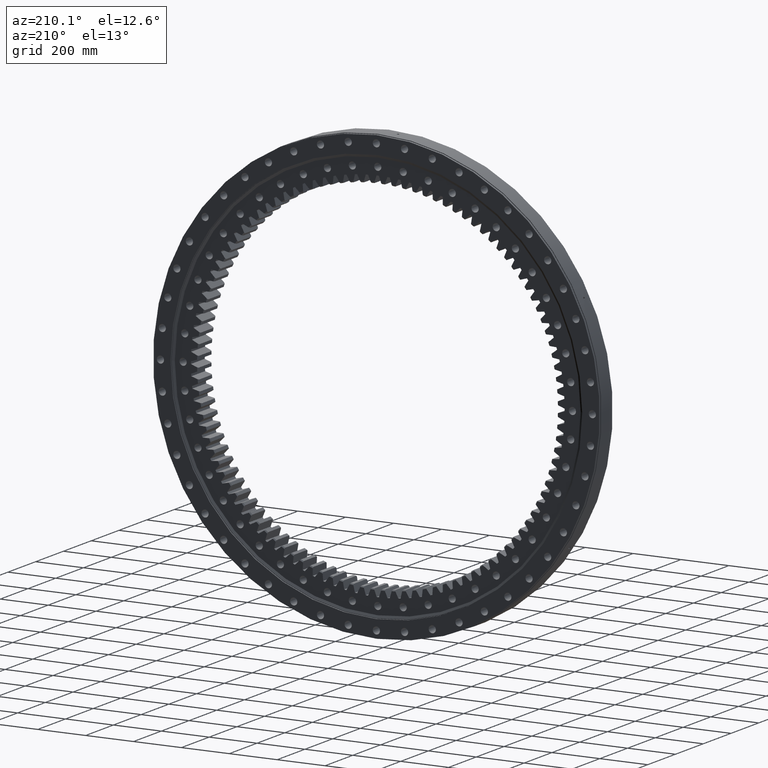
[diagram: clean part render]
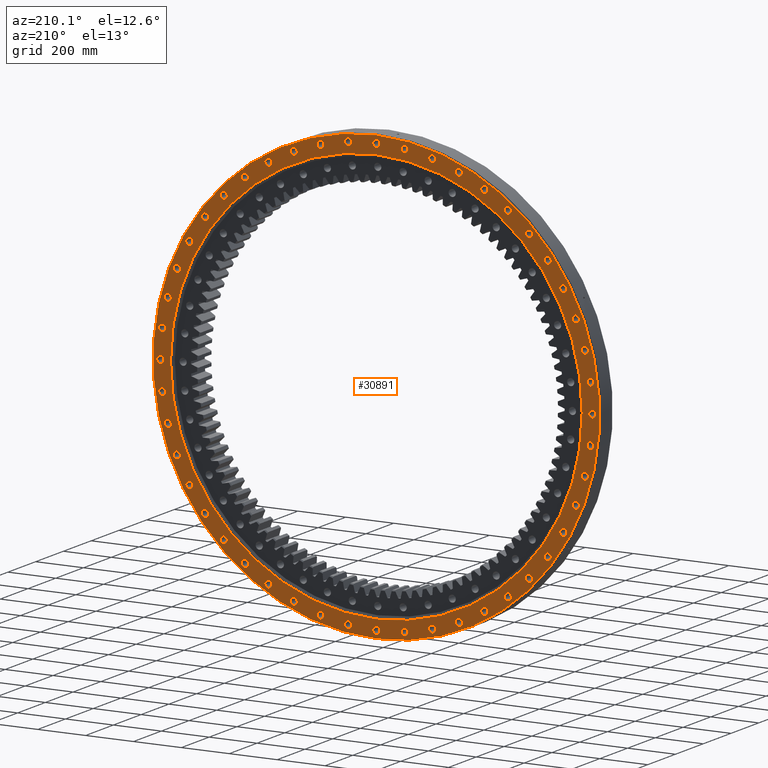
[diagram: same view with one face highlighted and labeled with its STEP entity id]
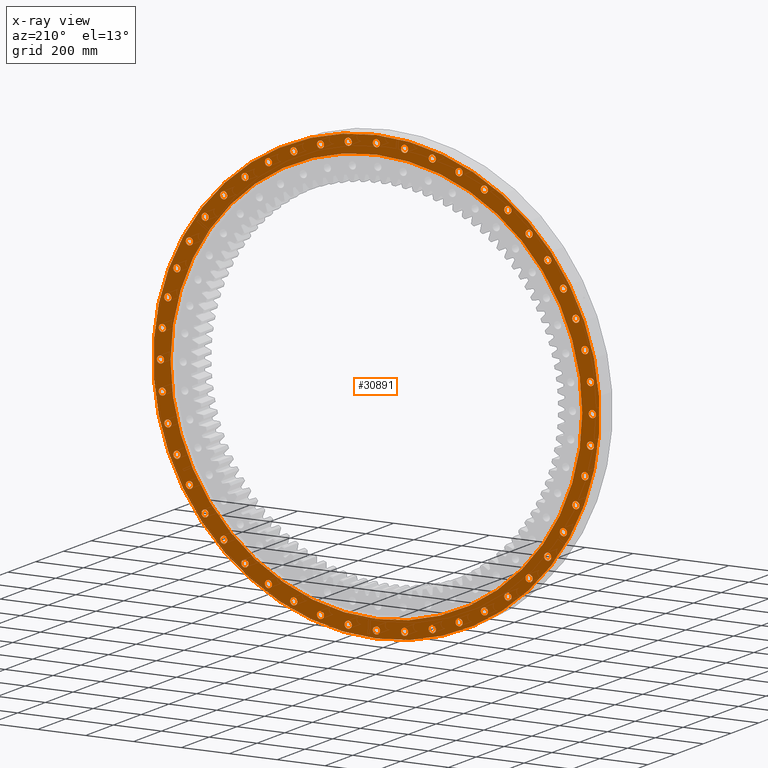
[diagram: x-ray of the same camera — body ghosted, the highlighted face saturated]
A machine part, auxiliary view. The second image highlights one B-rep face of the part: STEP entity #30891.
The next image is the same camera in x-ray: the body ghosted, the highlighted face saturated — about 0% of this face is hidden behind the body in this view.
In plain terms, the highlighted planar face has unit normal (0, -1, -0).
Its self-contained STEP definition (entity closure, byte-faithful):
#3 = CIRCLE ( 'NONE', #27538, 14.99999999999998000 ) ;
#63 = DIRECTION ( 'NONE',  ( 1.173697223544192200E-016, -1.000000000000000000, -3.494217355385783800E-017 ) ) ;
#72 = FACE_BOUND ( 'NONE', #2054, .T. ) ;
#81 = DIRECTION ( 'NONE',  ( 1.173697223544192200E-016, -1.000000000000000000, -3.494217355385783800E-017 ) ) ;
#86 = VERTEX_POINT ( 'NONE', #26274 ) ;
#94 = CARTESIAN_POINT ( 'NONE',  ( 6.801570962006775200E-012, 50.00000000000013500, -902.0000000000000000 ) ) ;
#101 = CIRCLE ( 'NONE', #29449, 15.00000000000004100 ) ;
#108 = AXIS2_PLACEMENT_3D ( 'NONE', #29993, #28462, #15073 ) ;
#120 = CIRCLE ( 'NONE', #23878, 14.99999999999998900 ) ;
#169 = AXIS2_PLACEMENT_3D ( 'NONE', #20836, #20941, #21055 ) ;
#172 = ORIENTED_EDGE ( 'NONE', *, *, #29916, .T. ) ;
#181 = AXIS2_PLACEMENT_3D ( 'NONE', #17140, #2171, #19634 ) ;
#229 = DIRECTION ( 'NONE',  ( 0.5000000000000017800, 0.0000000000000000000, 0.8660254037844376000 ) ) ;
#243 = EDGE_LOOP ( 'NONE', ( #14337, #7888 ) ) ;
#252 = ORIENTED_EDGE ( 'NONE', *, *, #29567, .T. ) ;
#289 = EDGE_CURVE ( 'NONE', #6987, #1306, #21951, .T. ) ;
#373 = CARTESIAN_POINT ( 'NONE',  ( 345.1804559933179900, 50.00000000000017100, -818.3393383251777800 ) ) ;
#406 = DIRECTION ( 'NONE',  ( 0.7933533402912311700, 0.0000000000000000000, -0.6087614290087257600 ) ) ;
#422 = VERTEX_POINT ( 'NONE', #20165 ) ;
#447 = CIRCLE ( 'NONE', #16486, 14.99999999999996300 ) ;
#513 = EDGE_LOOP ( 'NONE', ( #172, #29386 ) ) ;
#521 = AXIS2_PLACEMENT_3D ( 'NONE', #3007, #10561, #21076 ) ;
#542 = EDGE_LOOP ( 'NONE', ( #16275, #10232 ) ) ;
#561 = EDGE_LOOP ( 'NONE', ( #25089, #31886 ) ) ;
#563 = AXIS2_PLACEMENT_3D ( 'NONE', #7395, #27239, #7280 ) ;
#568 = CARTESIAN_POINT ( 'NONE',  ( 117.7346253824738100, 50.00000000000007800, 879.2832649591786100 ) ) ;
#600 = ORIENTED_EDGE ( 'NONE', *, *, #831, .T. ) ;
#602 = VERTEX_POINT ( 'NONE', #9933 ) ;
#659 = CARTESIAN_POINT ( 'NONE',  ( -345.1804559933117400, 50.00000000000002800, 833.3393383251803900 ) ) ;
#661 = VERTEX_POINT ( 'NONE', #4127 ) ;
#668 = AXIS2_PLACEMENT_3D ( 'NONE', #19312, #21830, #6883 ) ;
#711 = DIRECTION ( 'NONE',  ( -0.7933533402912410500, 0.0000000000000000000, -0.6087614290087130000 ) ) ;
#736 = VERTEX_POINT ( 'NONE', #4018 ) ;
#743 = VERTEX_POINT ( 'NONE', #6397 ) ;
#794 = DIRECTION ( 'NONE',  ( 0.8660254037844359300, 0.0000000000000000000, -0.5000000000000045500 ) ) ;
#814 = ORIENTED_EDGE ( 'NONE', *, *, #18631, .T. ) ;
#831 = EDGE_CURVE ( 'NONE', #21759, #1508, #20322, .T. ) ;
#849 = FACE_BOUND ( 'NONE', #20441, .T. ) ;
#882 = EDGE_CURVE ( 'NONE', #24099, #29479, #24227, .T. ) ;
#920 = CIRCLE ( 'NONE', #1044, 15.00000000000004800 ) ;
#978 = EDGE_CURVE ( 'NONE', #1429, #23157, #14441, .T. ) ;
#1044 = AXIS2_PLACEMENT_3D ( 'NONE', #6960, #28805, #2208 ) ;
#1173 = CIRCLE ( 'NONE', #21578, 15.00000000000002800 ) ;
#1185 = EDGE_LOOP ( 'NONE', ( #25705, #8099 ) ) ;
#1209 = CARTESIAN_POINT ( 'NONE',  ( 451.0000000000067600, 50.00000000000018500, -781.1549142135597800 ) ) ;
#1251 = CARTESIAN_POINT ( 'NONE',  ( 6.804182962045533600E-012, 50.00000000000013500, -917.0000000000000000 ) ) ;
#1306 = VERTEX_POINT ( 'NONE', #7693 ) ;
#1429 = VERTEX_POINT ( 'NONE', #31940 ) ;
#1448 = CARTESIAN_POINT ( 'NONE',  ( 6.807685266781192500E-012, 50.00000000000013500, -887.0000000000000000 ) ) ;
#1508 = VERTEX_POINT ( 'NONE', #24439 ) ;
#1568 = AXIS2_PLACEMENT_3D ( 'NONE', #26696, #26627, #27031 ) ;
#1611 = CARTESIAN_POINT ( 'NONE',  ( 715.6047129426872300, 50.00000000000016300, 564.1028089658749400 ) ) ;
#1635 = FACE_BOUND ( 'NONE', #30404, .T. ) ;
#1647 = CIRCLE ( 'NONE', #24895, 14.99999999999996400 ) ;
#1728 = AXIS2_PLACEMENT_3D ( 'NONE', #10919, #20835, #5889 ) ;
#1733 = EDGE_LOOP ( 'NONE', ( #27040, #15904 ) ) ;
#1815 = EDGE_CURVE ( 'NONE', #11318, #10896, #21083, .T. ) ;
#1867 = DIRECTION ( 'NONE',  ( 0.6087614290087212100, 0.0000000000000000000, 0.7933533402912347200 ) ) ;
#1886 = ORIENTED_EDGE ( 'NONE', *, *, #2342, .T. ) ;
#1913 = CIRCLE ( 'NONE', #7288, 15.00000000000004800 ) ;
#1927 = CARTESIAN_POINT ( 'NONE',  ( 345.1804559932997400, 50.00000000000011400, 818.3393383251856200 ) ) ;
#1934 = DIRECTION ( 'NONE',  ( 1.173697223544192200E-016, -1.000000000000000000, -3.494217355385783800E-017 ) ) ;
#1947 = CARTESIAN_POINT ( 'NONE',  ( 549.1028089658566400, 50.00000000000013500, 715.6047129427013300 ) ) ;
#1963 = CIRCLE ( 'NONE', #20094, 15.00000000000005500 ) ;
#2032 = DIRECTION ( 'NONE',  ( -0.9659258262890652000, 0.0000000000000000000, 0.2588190451025322300 ) ) ;
#2042 = EDGE_CURVE ( 'NONE', #10896, #11318, #23805, .T. ) ;
#2046 = AXIS2_PLACEMENT_3D ( 'NONE', #5449, #5587, #5654 ) ;
#2051 = CARTESIAN_POINT ( 'NONE',  ( 233.4547786824808200, 50.00000000000015600, -886.2650953127376900 ) ) ;
#2054 = EDGE_LOOP ( 'NONE', ( #26213, #814 ) ) ;
#2088 = DIRECTION ( 'NONE',  ( 1.173697223544192200E-016, -1.000000000000000000, -3.494217355385783800E-017 ) ) ;
#2150 = EDGE_CURVE ( 'NONE', #5870, #21855, #19910, .T. ) ;
#2171 = DIRECTION ( 'NONE',  ( 1.173697223544192200E-016, -1.000000000000000000, -3.494217355385783800E-017 ) ) ;
#2205 = DIRECTION ( 'NONE',  ( 0.7933533402912375000, 0.0000000000000000000, 0.6087614290087175500 ) ) ;
#2208 = DIRECTION ( 'NONE',  ( 0.1305261922200517400, 0.0000000000000000000, 0.9914448613738103800 ) ) ;
#2222 = CARTESIAN_POINT ( 'NONE',  ( 781.1549142135683000, 50.00000000000020600, -435.9999999999923800 ) ) ;
#2223 = CARTESIAN_POINT ( 'NONE',  ( -5.868486117720972100E-015, 50.00000000000009900, 1.155123329265233200E-015 ) ) ;
#2226 = AXIS2_PLACEMENT_3D ( 'NONE', #1209, #22328, #23984 ) ;
#2280 = CARTESIAN_POINT ( 'NONE',  ( 715.6047129426872300, 50.00000000000016300, 549.1028089658749400 ) ) ;
#2318 = DIRECTION ( 'NONE',  ( 1.173697223544192200E-016, -1.000000000000000000, -3.494217355385783800E-017 ) ) ;
#2342 = EDGE_CURVE ( 'NONE', #4179, #736, #8580, .T. ) ;
#2401 = FACE_BOUND ( 'NONE', #30347, .T. ) ;
#2490 = VERTEX_POINT ( 'NONE', #25889 ) ;
#2750 = EDGE_CURVE ( 'NONE', #25613, #28932, #19879, .T. ) ;
#2751 = CIRCLE ( 'NONE', #181, 15.00000000000004400 ) ;
#2819 = DIRECTION ( 'NONE',  ( 1.173697223544192200E-016, -1.000000000000000000, -3.494217355385783800E-017 ) ) ;
#2850 = DIRECTION ( 'NONE',  ( 1.173697223544192200E-016, -1.000000000000000000, -3.494217355385783800E-017 ) ) ;
#2857 = CARTESIAN_POINT ( 'NONE',  ( 637.8103166302719300, 50.00000000000019900, -637.8103166302598800 ) ) ;
#2868 = CARTESIAN_POINT ( 'NONE',  ( -894.2832649591773600, 49.99999999999998600, 102.7346253824835600 ) ) ;
#2896 = DIRECTION ( 'NONE',  ( 0.7071067811865438000, 0.0000000000000000000, -0.7071067811865512400 ) ) ;
#2897 = CIRCLE ( 'NONE', #27378, 14.99999999999996800 ) ;
#2984 = CIRCLE ( 'NONE', #2226, 15.00000000000003000 ) ;
#2986 = EDGE_LOOP ( 'NONE', ( #9182, #12463 ) ) ;
#2995 = EDGE_CURVE ( 'NONE', #10478, #25177, #14388, .T. ) ;
#3007 = CARTESIAN_POINT ( 'NONE',  ( -637.8103166302621500, 50.00000000000004300, -637.8103166302696500 ) ) ;
#3033 = CIRCLE ( 'NONE', #3389, 932.5000000000001100 ) ;
#3059 = CARTESIAN_POINT ( 'NONE',  ( -345.1804559933054300, 50.00000000000008500, -833.3393383251828900 ) ) ;
#3078 = AXIS2_PLACEMENT_3D ( 'NONE', #24471, #9526, #26991 ) ;
#3125 = VERTEX_POINT ( 'NONE', #8338 ) ;
#3169 = FACE_BOUND ( 'NONE', #542, .T. ) ;
#3178 = DIRECTION ( 'NONE',  ( 1.173697223544192200E-016, -1.000000000000000000, -3.494217355385783800E-017 ) ) ;
#3277 = ORIENTED_EDGE ( 'NONE', *, *, #4841, .T. ) ;
#3345 = CARTESIAN_POINT ( 'NONE',  ( -637.8103166302621500, 50.00000000000004300, -637.8103166302696500 ) ) ;
#3351 = ORIENTED_EDGE ( 'NONE', *, *, #10917, .T. ) ;
#3356 = AXIS2_PLACEMENT_3D ( 'NONE', #3648, #28362, #22997 ) ;
#3376 = CIRCLE ( 'NONE', #31932, 15.00000000000000500 ) ;
#3389 = AXIS2_PLACEMENT_3D ( 'NONE', #2223, #19692, #4727 ) ;
#3421 = AXIS2_PLACEMENT_3D ( 'NONE', #28040, #14301, #229 ) ;
#3530 = CARTESIAN_POINT ( 'NONE',  ( 450.9999999999896000, 50.00000000000012800, 781.1549142135696700 ) ) ;
#3555 = DIRECTION ( 'NONE',  ( 0.5000000000000017800, 0.0000000000000000000, 0.8660254037844376000 ) ) ;
#3596 = DIRECTION ( 'NONE',  ( 1.173697223544192200E-016, -1.000000000000000000, -3.494217355385783800E-017 ) ) ;
#3628 = CARTESIAN_POINT ( 'NONE',  ( 549.1028089658566400, 50.00000000000013500, 715.6047129427013300 ) ) ;
#3639 = DIRECTION ( 'NONE',  ( 1.173697223544192200E-016, -1.000000000000000000, -3.494217355385783800E-017 ) ) ;
#3642 = ORIENTED_EDGE ( 'NONE', *, *, #4660, .T. ) ;
#3648 = CARTESIAN_POINT ( 'NONE',  ( 637.8103166302719300, 50.00000000000019900, -637.8103166302598800 ) ) ;
#3696 = DIRECTION ( 'NONE',  ( 1.173697223544192200E-016, -1.000000000000000000, -3.494217355385783800E-017 ) ) ;
#3708 = EDGE_CURVE ( 'NONE', #8336, #7880, #15520, .T. ) ;
#3802 = VERTEX_POINT ( 'NONE', #27596 ) ;
#3884 = AXIS2_PLACEMENT_3D ( 'NONE', #29629, #14668, #32161 ) ;
#3948 = FACE_BOUND ( 'NONE', #11514, .T. ) ;
#3991 = EDGE_CURVE ( 'NONE', #23522, #7180, #3376, .T. ) ;
#3995 = ORIENTED_EDGE ( 'NONE', *, *, #9435, .T. ) ;
#4018 = CARTESIAN_POINT ( 'NONE',  ( -117.7346253824876900, 50.00000000000005000, 879.2832649591769000 ) ) ;
#4049 = ORIENTED_EDGE ( 'NONE', *, *, #11099, .T. ) ;
#4086 = VERTEX_POINT ( 'NONE', #5808 ) ;
#4127 = CARTESIAN_POINT ( 'NONE',  ( 871.2650953127368900, 50.00000000000019900, 218.4547786824838600 ) ) ;
#4147 = CARTESIAN_POINT ( 'NONE',  ( 451.0000000000067600, 50.00000000000018500, -796.1549142135597800 ) ) ;
#4171 = DIRECTION ( 'NONE',  ( 1.173697223544192200E-016, -1.000000000000000000, -3.494217355385783800E-017 ) ) ;
#4179 = VERTEX_POINT ( 'NONE', #11150 ) ;
#4192 = EDGE_LOOP ( 'NONE', ( #26758, #13366 ) ) ;
#4264 = VERTEX_POINT ( 'NONE', #8908 ) ;
#4267 = EDGE_CURVE ( 'NONE', #30924, #4722, #2984, .T. ) ;
#4269 = EDGE_CURVE ( 'NONE', #15565, #6810, #22147, .T. ) ;
#4273 = AXIS2_PLACEMENT_3D ( 'NONE', #18497, #18462, #18402 ) ;
#4320 = CARTESIAN_POINT ( 'NONE',  ( -233.4547786824676600, 50.00000000000009900, -856.2650953127413200 ) ) ;
#4355 = DIRECTION ( 'NONE',  ( 1.173697223544192200E-016, -1.000000000000000000, -3.494217355385783800E-017 ) ) ;
#4469 = CARTESIAN_POINT ( 'NONE',  ( -871.2650953127385900, 50.00000000000000000, -233.4547786824777800 ) ) ;
#4517 = CARTESIAN_POINT ( 'NONE',  ( -871.2650953127404100, 49.99999999999998600, 233.4547786824707300 ) ) ;
#4518 = AXIS2_PLACEMENT_3D ( 'NONE', #23077, #8144, #25592 ) ;
#4535 = DIRECTION ( 'NONE',  ( -0.9659258262890708700, 0.0000000000000000000, -0.2588190451025113600 ) ) ;
#4543 = DIRECTION ( 'NONE',  ( 1.173697223544192200E-016, -1.000000000000000000, -3.494217355385783800E-017 ) ) ;
#4564 = AXIS2_PLACEMENT_3D ( 'NONE', #27702, #17250, #11973 ) ;
#4586 = VERTEX_POINT ( 'NONE', #25896 ) ;
#4660 = EDGE_CURVE ( 'NONE', #8853, #27270, #7691, .T. ) ;
#4722 = VERTEX_POINT ( 'NONE', #19667 ) ;
#4727 = DIRECTION ( 'NONE',  ( 5.551115123125782700E-017, -3.720586543649987800E-017, 1.000000000000000000 ) ) ;
#4729 = CARTESIAN_POINT ( 'NONE',  ( -833.3393383251818700, 49.99999999999998600, 345.1804559933079300 ) ) ;
#4749 = FACE_BOUND ( 'NONE', #2986, .T. ) ;
#4809 = AXIS2_PLACEMENT_3D ( 'NONE', #12457, #2850, #12772 ) ;
#4837 = AXIS2_PLACEMENT_3D ( 'NONE', #3059, #20513, #5568 ) ;
#4841 = EDGE_CURVE ( 'NONE', #661, #23095, #22881, .T. ) ;
#4857 = EDGE_LOOP ( 'NONE', ( #16171, #31882 ) ) ;
#4885 = AXIS2_PLACEMENT_3D ( 'NONE', #26130, #11168, #28628 ) ;
#4962 = ORIENTED_EDGE ( 'NONE', *, *, #3991, .T. ) ;
#5004 = ORIENTED_EDGE ( 'NONE', *, *, #28005, .T. ) ;
#5017 = EDGE_CURVE ( 'NONE', #26317, #31073, #25605, .T. ) ;
#5041 = EDGE_CURVE ( 'NONE', #7768, #11282, #13090, .T. ) ;
#5049 = DIRECTION ( 'NONE',  ( 1.173697223544192200E-016, -1.000000000000000000, -3.494217355385783800E-017 ) ) ;
#5052 = DIRECTION ( 'NONE',  ( 1.173697223544192200E-016, -1.000000000000000000, -3.494217355385783800E-017 ) ) ;
#5060 = VERTEX_POINT ( 'NONE', #14300 ) ;
#5074 = CARTESIAN_POINT ( 'NONE',  ( -781.1549142135613700, 50.00000000000002100, -436.0000000000040400 ) ) ;
#5111 = EDGE_CURVE ( 'NONE', #602, #7812, #29122, .T. ) ;
#5125 = CIRCLE ( 'NONE', #20167, 15.00000000000001400 ) ;
#5134 = FACE_BOUND ( 'NONE', #9585, .T. ) ;
#5172 = CIRCLE ( 'NONE', #10446, 15.00000000000004800 ) ;
#5189 = DIRECTION ( 'NONE',  ( 1.173697223544192200E-016, -1.000000000000000000, -3.494217355385783800E-017 ) ) ;
#5257 = CARTESIAN_POINT ( 'NONE',  ( 715.6047129426872300, 50.00000000000016300, 549.1028089658749400 ) ) ;
#5291 = EDGE_LOOP ( 'NONE', ( #14452, #25015 ) ) ;
#5326 = AXIS2_PLACEMENT_3D ( 'NONE', #12683, #12185, #12145 ) ;
#5333 = ORIENTED_EDGE ( 'NONE', *, *, #2995, .T. ) ;
#5371 = DIRECTION ( 'NONE',  ( -0.5000000000000073300, 0.0000000000000000000, -0.8660254037844343800 ) ) ;
#5388 = AXIS2_PLACEMENT_3D ( 'NONE', #11753, #29246, #14264 ) ;
#5449 = CARTESIAN_POINT ( 'NONE',  ( -894.2832649591773600, 49.99999999999998600, 117.7346253824835700 ) ) ;
#5477 = DIRECTION ( 'NONE',  ( 1.173697223544192200E-016, -1.000000000000000000, -3.494217355385783800E-017 ) ) ;
#5483 = CIRCLE ( 'NONE', #10529, 14.99999999999996400 ) ;
#5568 = DIRECTION ( 'NONE',  ( -0.3826834323650986100, 0.0000000000000000000, -0.9238795325112830700 ) ) ;
#5579 = CARTESIAN_POINT ( 'NONE',  ( -450.9999999999950500, 50.00000000000007100, -781.1549142135664900 ) ) ;
#5580 = CARTESIAN_POINT ( 'NONE',  ( 345.1804559932997400, 50.00000000000011400, 833.3393383251856200 ) ) ;
#5587 = DIRECTION ( 'NONE',  ( 1.173697223544192200E-016, -1.000000000000000000, -3.494217355385783800E-017 ) ) ;
#5601 = VERTEX_POINT ( 'NONE', #32294 ) ;
#5613 = EDGE_LOOP ( 'NONE', ( #22590, #8625 ) ) ;
#5654 = DIRECTION ( 'NONE',  ( -0.9914448613738088300, 0.0000000000000000000, 0.1305261922200636200 ) ) ;
#5677 = ORIENTED_EDGE ( 'NONE', *, *, #11122, .T. ) ;
#5699 = EDGE_LOOP ( 'NONE', ( #252, #18092 ) ) ;
#5733 = ORIENTED_EDGE ( 'NONE', *, *, #882, .T. ) ;
#5773 = ORIENTED_EDGE ( 'NONE', *, *, #32227, .T. ) ;
#5808 = CARTESIAN_POINT ( 'NONE',  ( -345.1804559933054300, 50.00000000000008500, -818.3393383251828900 ) ) ;
#5846 = ORIENTED_EDGE ( 'NONE', *, *, #24245, .T. ) ;
#5870 = VERTEX_POINT ( 'NONE', #30946 ) ;
#5889 = DIRECTION ( 'NONE',  ( -0.2588190451025079200, 0.0000000000000000000, 0.9659258262890717500 ) ) ;
#5904 = FACE_BOUND ( 'NONE', #18943, .T. ) ;
#6104 = CARTESIAN_POINT ( 'NONE',  ( -549.1028089658677800, 50.00000000000000700, 730.6047129426928000 ) ) ;
#6184 = ORIENTED_EDGE ( 'NONE', *, *, #23850, .T. ) ;
#6216 = VERTEX_POINT ( 'NONE', #22247 ) ;
#6283 = AXIS2_PLACEMENT_3D ( 'NONE', #2857, #2819, #2896 ) ;
#6316 = FACE_BOUND ( 'NONE', #20021, .T. ) ;
#6319 = CARTESIAN_POINT ( 'NONE',  ( -549.1028089658677800, 50.00000000000000700, 715.6047129426928000 ) ) ;
#6396 = CIRCLE ( 'NONE', #25707, 15.00000000000001600 ) ;
#6397 = CARTESIAN_POINT ( 'NONE',  ( 233.4547786824808200, 50.00000000000015600, -856.2650953127376900 ) ) ;
#6474 = AXIS2_PLACEMENT_3D ( 'NONE', #29522, #29483, #29448 ) ;
#6566 = CARTESIAN_POINT ( 'NONE',  ( 4.185569959669408200E-014, 50.00000000000007800, 859.7224999999999700 ) ) ;
#6612 = CARTESIAN_POINT ( 'NONE',  ( -833.3393383251791400, 50.00000000000001400, -360.1804559933146900 ) ) ;
#6637 = CARTESIAN_POINT ( 'NONE',  ( -345.1804559933117400, 50.00000000000002800, 818.3393383251803900 ) ) ;
#6641 = ORIENTED_EDGE ( 'NONE', *, *, #18972, .T. ) ;
#6648 = AXIS2_PLACEMENT_3D ( 'NONE', #18604, #3639, #21118 ) ;
#6715 = FACE_BOUND ( 'NONE', #12240, .T. ) ;
#6750 = CIRCLE ( 'NONE', #21057, 15.00000000000002700 ) ;
#6778 = DIRECTION ( 'NONE',  ( 0.8660254037844410400, 0.0000000000000000000, 0.4999999999999957300 ) ) ;
#6799 = CIRCLE ( 'NONE', #3884, 15.00000000000004800 ) ;
#6810 = VERTEX_POINT ( 'NONE', #31322 ) ;
#6883 = DIRECTION ( 'NONE',  ( 5.551115123125782700E-017, -3.228434246588744100E-017, 1.000000000000000000 ) ) ;
#6917 = ORIENTED_EDGE ( 'NONE', *, *, #1815, .T. ) ;
#6918 = AXIS2_PLACEMENT_3D ( 'NONE', #13911, #13882, #13947 ) ;
#6935 = DIRECTION ( 'NONE',  ( -0.9238795325112817400, 0.0000000000000000000, 0.3826834323651017200 ) ) ;
#6939 = EDGE_CURVE ( 'NONE', #19975, #3802, #28600, .T. ) ;
#6959 = VERTEX_POINT ( 'NONE', #6986 ) ;
#6960 = CARTESIAN_POINT ( 'NONE',  ( 117.7346253824738100, 50.00000000000007800, 894.2832649591786100 ) ) ;
#6971 = CIRCLE ( 'NONE', #21906, 15.00000000000004800 ) ;
#6973 = EDGE_LOOP ( 'NONE', ( #17966, #27580 ) ) ;
#6986 = CARTESIAN_POINT ( 'NONE',  ( 345.1804559932997400, 50.00000000000011400, 848.3393383251856200 ) ) ;
#6987 = VERTEX_POINT ( 'NONE', #11539 ) ;
#7010 = ORIENTED_EDGE ( 'NONE', *, *, #17253, .T. ) ;
#7015 = EDGE_CURVE ( 'NONE', #18455, #32383, #7153, .T. ) ;
#7018 = CIRCLE ( 'NONE', #20210, 15.00000000000000500 ) ;
#7065 = DIRECTION ( 'NONE',  ( 1.173697223544192200E-016, -1.000000000000000000, -3.494217355385783800E-017 ) ) ;
#7135 = CIRCLE ( 'NONE', #6474, 15.00000000000003600 ) ;
#7153 = CIRCLE ( 'NONE', #12647, 14.99999999999998000 ) ;
#7180 = VERTEX_POINT ( 'NONE', #15303 ) ;
#7210 = CARTESIAN_POINT ( 'NONE',  ( 781.1549142135581900, 50.00000000000017800, 451.0000000000095500 ) ) ;
#7231 = VERTEX_POINT ( 'NONE', #16480 ) ;
#7251 = VERTEX_POINT ( 'NONE', #17072 ) ;
#7280 = DIRECTION ( 'NONE',  ( -0.9659258262890652000, 0.0000000000000000000, 0.2588190451025322300 ) ) ;
#7288 = AXIS2_PLACEMENT_3D ( 'NONE', #15275, #30234, #12738 ) ;
#7351 = CARTESIAN_POINT ( 'NONE',  ( -1.311194026951523000E-011, 50.00000000000006400, 902.0000000000000000 ) ) ;
#7395 = CARTESIAN_POINT ( 'NONE',  ( -871.2650953127404100, 49.99999999999998600, 233.4547786824707300 ) ) ;
#7437 = CARTESIAN_POINT ( 'NONE',  ( 871.2650953127423500, 50.00000000000021300, -233.4547786824646800 ) ) ;
#7513 = FACE_BOUND ( 'NONE', #13023, .T. ) ;
#7640 = AXIS2_PLACEMENT_3D ( 'NONE', #10758, #10724, #10685 ) ;
#7691 = CIRCLE ( 'NONE', #18321, 14.99999999999997500 ) ;
#7693 = CARTESIAN_POINT ( 'NONE',  ( -233.4547786824747400, 50.00000000000004300, 856.2650953127392800 ) ) ;
#7712 = DIRECTION ( 'NONE',  ( 1.173697223544192200E-016, -1.000000000000000000, -3.494217355385783800E-017 ) ) ;
#7728 = DIRECTION ( 'NONE',  ( -0.4999999999999901700, 0.0000000000000000000, 0.8660254037844442600 ) ) ;
#7757 = EDGE_CURVE ( 'NONE', #422, #5060, #30426, .T. ) ;
#7768 = VERTEX_POINT ( 'NONE', #28690 ) ;
#7812 = VERTEX_POINT ( 'NONE', #30935 ) ;
#7843 = VERTEX_POINT ( 'NONE', #31793 ) ;
#7880 = VERTEX_POINT ( 'NONE', #1251 ) ;
#7888 = ORIENTED_EDGE ( 'NONE', *, *, #11612, .T. ) ;
#7894 = CARTESIAN_POINT ( 'NONE',  ( 549.1028089658724400, 50.00000000000019200, -715.6047129426891600 ) ) ;
#7978 = AXIS2_PLACEMENT_3D ( 'NONE', #3530, #3596, #3555 ) ;
#7980 = EDGE_CURVE ( 'NONE', #32383, #18455, #31573, .T. ) ;
#7991 = DIRECTION ( 'NONE',  ( 1.173697223544192200E-016, -1.000000000000000000, -3.494217355385783800E-017 ) ) ;
#7999 = CARTESIAN_POINT ( 'NONE',  ( -117.7346253824800300, 50.00000000000012100, -879.2832649591778100 ) ) ;
#8028 = DIRECTION ( 'NONE',  ( 0.6087614290087175500, 0.0000000000000000000, -0.7933533402912375000 ) ) ;
#8049 = EDGE_CURVE ( 'NONE', #18456, #15299, #10108, .T. ) ;
#8092 = AXIS2_PLACEMENT_3D ( 'NONE', #29951, #27446, #9994 ) ;
#8099 = ORIENTED_EDGE ( 'NONE', *, *, #24608, .T. ) ;
#8119 = DIRECTION ( 'NONE',  ( 0.3826834323650896700, 0.0000000000000000000, 0.9238795325112868500 ) ) ;
#8135 = EDGE_LOOP ( 'NONE', ( #20399, #8207 ) ) ;
#8144 = DIRECTION ( 'NONE',  ( 1.173697223544192200E-016, -1.000000000000000000, -3.494217355385783800E-017 ) ) ;
#8206 = DIRECTION ( 'NONE',  ( 1.173697223544192200E-016, -1.000000000000000000, -3.494217355385783800E-017 ) ) ;
#8207 = ORIENTED_EDGE ( 'NONE', *, *, #13068, .T. ) ;
#8232 = CARTESIAN_POINT ( 'NONE',  ( 894.2832649591757700, 50.00000000000019900, 117.7346253824966700 ) ) ;
#8237 = EDGE_CURVE ( 'NONE', #21405, #22146, #6971, .T. ) ;
#8249 = CARTESIAN_POINT ( 'NONE',  ( -715.6047129426908700, 50.00000000000003600, -549.1028089658703900 ) ) ;
#8251 = ORIENTED_EDGE ( 'NONE', *, *, #22492, .T. ) ;
#8277 = FACE_BOUND ( 'NONE', #21787, .T. ) ;
#8336 = VERTEX_POINT ( 'NONE', #1448 ) ;
#8338 = CARTESIAN_POINT ( 'NONE',  ( 715.6047129426995100, 50.00000000000020600, -534.1028089658591400 ) ) ;
#8353 = AXIS2_PLACEMENT_3D ( 'NONE', #3628, #21103, #13559 ) ;
#8362 = CARTESIAN_POINT ( 'NONE',  ( -345.1804559933054300, 50.00000000000008500, -848.3393383251828900 ) ) ;
#8408 = EDGE_LOOP ( 'NONE', ( #25275, #3642 ) ) ;
#8435 = ORIENTED_EDGE ( 'NONE', *, *, #19935, .T. ) ;
#8580 = CIRCLE ( 'NONE', #1568, 15.00000000000002100 ) ;
#8625 = ORIENTED_EDGE ( 'NONE', *, *, #4267, .T. ) ;
#8651 = AXIS2_PLACEMENT_3D ( 'NONE', #29411, #31003, #794 ) ;
#8683 = CARTESIAN_POINT ( 'NONE',  ( -833.3393383251791400, 50.00000000000001400, -330.1804559933146900 ) ) ;
#8853 = VERTEX_POINT ( 'NONE', #29032 ) ;
#8908 = CARTESIAN_POINT ( 'NONE',  ( -1.311110760224676300E-011, 50.00000000000006400, 917.0000000000000000 ) ) ;
#8965 = ORIENTED_EDGE ( 'NONE', *, *, #13414, .T. ) ;
#9052 = EDGE_CURVE ( 'NONE', #1508, #21759, #11569, .T. ) ;
#9056 = FACE_BOUND ( 'NONE', #5699, .T. ) ;
#9126 = DIRECTION ( 'NONE',  ( 1.173697223544192200E-016, -1.000000000000000000, -3.494217355385783800E-017 ) ) ;
#9182 = ORIENTED_EDGE ( 'NONE', *, *, #6939, .T. ) ;
#9202 = VERTEX_POINT ( 'NONE', #2051 ) ;
#9354 = ORIENTED_EDGE ( 'NONE', *, *, #14016, .T. ) ;
#9431 = VERTEX_POINT ( 'NONE', #17850 ) ;
#9435 = EDGE_CURVE ( 'NONE', #15762, #10524, #21325, .T. ) ;
#9459 = EDGE_CURVE ( 'NONE', #29067, #23044, #20524, .T. ) ;
#9507 = CIRCLE ( 'NONE', #6648, 15.00000000000002700 ) ;
#9526 = DIRECTION ( 'NONE',  ( 1.173697223544192200E-016, -1.000000000000000000, -3.494217355385783800E-017 ) ) ;
#9544 = EDGE_CURVE ( 'NONE', #13448, #13204, #31481, .T. ) ;
#9548 = DIRECTION ( 'NONE',  ( 1.173697223544192200E-016, -1.000000000000000000, -3.494217355385783800E-017 ) ) ;
#9567 = EDGE_LOOP ( 'NONE', ( #6184, #9354 ) ) ;
#9585 = EDGE_LOOP ( 'NONE', ( #1886, #5004 ) ) ;
#9618 = EDGE_LOOP ( 'NONE', ( #18955, #4962 ) ) ;
#9655 = EDGE_CURVE ( 'NONE', #4586, #10680, #15847, .T. ) ;
#9700 = CARTESIAN_POINT ( 'NONE',  ( -345.1804559933117400, 50.00000000000002800, 848.3393383251803900 ) ) ;
#9851 = CARTESIAN_POINT ( 'NONE',  ( -833.3393383251791400, 50.00000000000001400, -345.1804559933146900 ) ) ;
#9853 = FACE_BOUND ( 'NONE', #513, .T. ) ;
#9890 = CIRCLE ( 'NONE', #21095, 15.00000000000004100 ) ;
#9914 = CARTESIAN_POINT ( 'NONE',  ( 6.801570962006775200E-012, 50.00000000000013500, -902.0000000000000000 ) ) ;
#9933 = CARTESIAN_POINT ( 'NONE',  ( 549.1028089658724400, 50.00000000000019200, -730.6047129426891600 ) ) ;
#9983 = EDGE_CURVE ( 'NONE', #25246, #28896, #14665, .T. ) ;
#9988 = CARTESIAN_POINT ( 'NONE',  ( 715.6047129426995100, 50.00000000000020600, -549.1028089658591400 ) ) ;
#9994 = DIRECTION ( 'NONE',  ( 1.000000000000000000, 0.0000000000000000000, -3.546992490074421600E-015 ) ) ;
#10100 = VERTEX_POINT ( 'NONE', #20213 ) ;
#10108 = CIRCLE ( 'NONE', #25857, 14.99999999999998400 ) ;
#10137 = CIRCLE ( 'NONE', #17212, 15.00000000000000200 ) ;
#10216 = CARTESIAN_POINT ( 'NONE',  ( -1.310932826947647200E-011, 50.00000000000006400, 887.0000000000000000 ) ) ;
#10223 = CARTESIAN_POINT ( 'NONE',  ( -451.0000000000013600, 50.00000000000001400, 781.1549142135628500 ) ) ;
#10232 = ORIENTED_EDGE ( 'NONE', *, *, #13370, .T. ) ;
#10322 = EDGE_LOOP ( 'NONE', ( #21047, #11412 ) ) ;
#10360 = EDGE_LOOP ( 'NONE', ( #19316, #13955 ) ) ;
#10405 = AXIS2_PLACEMENT_3D ( 'NONE', #7894, #7991, #8028 ) ;
#10445 = DIRECTION ( 'NONE',  ( 5.551115123120728400E-017, 0.0000000000000000000, 1.000000000000000000 ) ) ;
#10446 = AXIS2_PLACEMENT_3D ( 'NONE', #24011, #24054, #24081 ) ;
#10478 = VERTEX_POINT ( 'NONE', #6612 ) ;
#10524 = VERTEX_POINT ( 'NONE', #28202 ) ;
#10529 = AXIS2_PLACEMENT_3D ( 'NONE', #18077, #4355, #25619 ) ;
#10555 = AXIS2_PLACEMENT_3D ( 'NONE', #31557, #31522, #31515 ) ;
#10561 = DIRECTION ( 'NONE',  ( 1.173697223544192200E-016, -1.000000000000000000, -3.494217355385783800E-017 ) ) ;
#10611 = CARTESIAN_POINT ( 'NONE',  ( -902.0000000000000000, 49.99999999999999300, -3.656376171810296700E-012 ) ) ;
#10616 = FACE_BOUND ( 'NONE', #20887, .T. ) ;
#10650 = AXIS2_PLACEMENT_3D ( 'NONE', #29708, #22070, #29491 ) ;
#10680 = VERTEX_POINT ( 'NONE', #19149 ) ;
#10685 = DIRECTION ( 'NONE',  ( 5.551115123125782700E-017, -3.228434246588744100E-017, 1.000000000000000000 ) ) ;
#10716 = DIRECTION ( 'NONE',  ( 0.9914448613738108300, 0.0000000000000000000, 0.1305261922200481000 ) ) ;
#10724 = DIRECTION ( 'NONE',  ( 1.173697223544192200E-016, -1.000000000000000000, -3.494217355385783800E-017 ) ) ;
#10741 = DIRECTION ( 'NONE',  ( 1.173697223544192200E-016, -1.000000000000000000, -3.494217355385783800E-017 ) ) ;
#10758 = CARTESIAN_POINT ( 'NONE',  ( -5.868486117720972100E-015, 50.00000000000009900, 1.747108677692895600E-015 ) ) ;
#10773 = EDGE_LOOP ( 'NONE', ( #6641, #31018 ) ) ;
#10788 = AXIS2_PLACEMENT_3D ( 'NONE', #28124, #13173, #30656 ) ;
#10877 = EDGE_LOOP ( 'NONE', ( #17606, #7010 ) ) ;
#10896 = VERTEX_POINT ( 'NONE', #24573 ) ;
#10917 = EDGE_CURVE ( 'NONE', #31073, #26317, #19301, .T. ) ;
#10919 = CARTESIAN_POINT ( 'NONE',  ( -233.4547786824747400, 50.00000000000004300, 871.2650953127392800 ) ) ;
#10984 = FACE_BOUND ( 'NONE', #8135, .T. ) ;
#10990 = DIRECTION ( 'NONE',  ( 0.9238795325112880700, 0.0000000000000000000, 0.3826834323650865100 ) ) ;
#11099 = EDGE_CURVE ( 'NONE', #27190, #22835, #20434, .T. ) ;
#11122 = EDGE_CURVE ( 'NONE', #30263, #11791, #6396, .T. ) ;
#11129 = CIRCLE ( 'NONE', #4564, 15.00000000000006000 ) ;
#11137 = CARTESIAN_POINT ( 'NONE',  ( -637.8103166302621500, 50.00000000000004300, -622.8103166302696500 ) ) ;
#11150 = CARTESIAN_POINT ( 'NONE',  ( -117.7346253824876900, 50.00000000000005000, 909.2832649591769000 ) ) ;
#11168 = DIRECTION ( 'NONE',  ( 1.173697223544192200E-016, -1.000000000000000000, -3.494217355385783800E-017 ) ) ;
#11240 = DIRECTION ( 'NONE',  ( 1.173697223544192200E-016, -1.000000000000000000, -3.494217355385783800E-017 ) ) ;
#11282 = VERTEX_POINT ( 'NONE', #2868 ) ;
#11318 = VERTEX_POINT ( 'NONE', #11137 ) ;
#11352 = EDGE_CURVE ( 'NONE', #2490, #21140, #920, .T. ) ;
#11370 = FACE_BOUND ( 'NONE', #243, .T. ) ;
#11405 = AXIS2_PLACEMENT_3D ( 'NONE', #4517, #19484, #2032 ) ;
#11412 = ORIENTED_EDGE ( 'NONE', *, *, #7015, .T. ) ;
#11443 = CARTESIAN_POINT ( 'NONE',  ( -450.9999999999950500, 50.00000000000007100, -781.1549142135664900 ) ) ;
#11509 = DIRECTION ( 'NONE',  ( -0.5000000000000073300, 0.0000000000000000000, -0.8660254037844343800 ) ) ;
#11514 = EDGE_LOOP ( 'NONE', ( #16898, #19076 ) ) ;
#11517 = DIRECTION ( 'NONE',  ( 1.173697223544192200E-016, -1.000000000000000000, -3.494217355385783800E-017 ) ) ;
#11533 = AXIS2_PLACEMENT_3D ( 'NONE', #17050, #2088, #19552 ) ;
#11539 = CARTESIAN_POINT ( 'NONE',  ( -233.4547786824747400, 50.00000000000004300, 886.2650953127393900 ) ) ;
#11559 = PLANE ( 'NONE',  #25474 ) ;
#11569 = CIRCLE ( 'NONE', #21698, 15.00000000000000500 ) ;
#11612 = EDGE_CURVE ( 'NONE', #22146, #21405, #20405, .T. ) ;
#11645 = ORIENTED_EDGE ( 'NONE', *, *, #22567, .T. ) ;
#11651 = CIRCLE ( 'NONE', #24637, 14.99999999999997500 ) ;
#11700 = DIRECTION ( 'NONE',  ( 1.173697223544192200E-016, -1.000000000000000000, -3.494217355385783800E-017 ) ) ;
#11731 = CIRCLE ( 'NONE', #7978, 14.99999999999996100 ) ;
#11749 = FACE_BOUND ( 'NONE', #4857, .T. ) ;
#11753 = CARTESIAN_POINT ( 'NONE',  ( 781.1549142135581900, 50.00000000000017800, 451.0000000000095500 ) ) ;
#11779 = DIRECTION ( 'NONE',  ( -0.7071067811865512400, 0.0000000000000000000, -0.7071067811865438000 ) ) ;
#11791 = VERTEX_POINT ( 'NONE', #23041 ) ;
#11941 = EDGE_CURVE ( 'NONE', #7231, #7251, #26674, .T. ) ;
#11973 = DIRECTION ( 'NONE',  ( -0.1305261922200581200, 0.0000000000000000000, -0.9914448613738096000 ) ) ;
#12082 = EDGE_CURVE ( 'NONE', #15299, #18456, #23523, .T. ) ;
#12135 = DIRECTION ( 'NONE',  ( 1.173697223544192200E-016, -1.000000000000000000, -3.494217355385783800E-017 ) ) ;
#12145 = DIRECTION ( 'NONE',  ( -0.9238795325112907400, 0.0000000000000000000, -0.3826834323650801800 ) ) ;
#12183 = CIRCLE ( 'NONE', #11533, 15.00000000000002100 ) ;
#12185 = DIRECTION ( 'NONE',  ( 1.173697223544192200E-016, -1.000000000000000000, -3.494217355385783800E-017 ) ) ;
#12226 = DIRECTION ( 'NONE',  ( -0.7933533402912410500, 0.0000000000000000000, -0.6087614290087130000 ) ) ;
#12240 = EDGE_LOOP ( 'NONE', ( #21897, #23376 ) ) ;
#12257 = AXIS2_PLACEMENT_3D ( 'NONE', #9988, #27439, #12470 ) ;
#12266 = DIRECTION ( 'NONE',  ( 1.173697223544192200E-016, -1.000000000000000000, -3.494217355385783800E-017 ) ) ;
#12301 = CARTESIAN_POINT ( 'NONE',  ( -715.6047129426908700, 50.00000000000003600, -549.1028089658703900 ) ) ;
#12324 = ORIENTED_EDGE ( 'NONE', *, *, #14282, .T. ) ;
#12327 = DIRECTION ( 'NONE',  ( -0.9238795325112907400, 0.0000000000000000000, -0.3826834323650801800 ) ) ;
#12452 = DIRECTION ( 'NONE',  ( 1.173697223544192200E-016, -1.000000000000000000, -3.494217355385783800E-017 ) ) ;
#12457 = CARTESIAN_POINT ( 'NONE',  ( 233.4547786824616100, 50.00000000000009900, 871.2650953127429100 ) ) ;
#12463 = ORIENTED_EDGE ( 'NONE', *, *, #20626, .T. ) ;
#12470 = DIRECTION ( 'NONE',  ( 0.7933533402912311700, 0.0000000000000000000, -0.6087614290087257600 ) ) ;
#12532 = VERTEX_POINT ( 'NONE', #30123 ) ;
#12546 = FACE_BOUND ( 'NONE', #22045, .T. ) ;
#12602 = CARTESIAN_POINT ( 'NONE',  ( 781.1549142135683000, 50.00000000000020600, -465.9999999999924400 ) ) ;
#12647 = AXIS2_PLACEMENT_3D ( 'NONE', #12301, #12266, #12226 ) ;
#12674 = CARTESIAN_POINT ( 'NONE',  ( -894.2832649591773600, 49.99999999999998600, 117.7346253824835700 ) ) ;
#12676 = AXIS2_PLACEMENT_3D ( 'NONE', #16182, #15002, #15072 ) ;
#12683 = CARTESIAN_POINT ( 'NONE',  ( -833.3393383251791400, 50.00000000000001400, -345.1804559933146900 ) ) ;
#12736 = ORIENTED_EDGE ( 'NONE', *, *, #9983, .T. ) ;
#12738 = DIRECTION ( 'NONE',  ( 0.1305261922200517400, 0.0000000000000000000, 0.9914448613738103800 ) ) ;
#12743 = CARTESIAN_POINT ( 'NONE',  ( -833.3393383251818700, 49.99999999999998600, 330.1804559933079300 ) ) ;
#12757 = CARTESIAN_POINT ( 'NONE',  ( 833.3393383251843700, 50.00000000000021300, -360.1804559933026400 ) ) ;
#12772 = DIRECTION ( 'NONE',  ( 0.2588190451025199600, 0.0000000000000000000, 0.9659258262890684200 ) ) ;
#12988 = EDGE_LOOP ( 'NONE', ( #12736, #17746 ) ) ;
#13023 = EDGE_LOOP ( 'NONE', ( #21120, #15534 ) ) ;
#13027 = CIRCLE ( 'NONE', #4518, 15.00000000000002100 ) ;
#13068 = EDGE_CURVE ( 'NONE', #22154, #30494, #21522, .T. ) ;
#13090 = CIRCLE ( 'NONE', #2046, 14.99999999999996100 ) ;
#13123 = ORIENTED_EDGE ( 'NONE', *, *, #24137, .T. ) ;
#13153 = EDGE_LOOP ( 'NONE', ( #3995, #26620 ) ) ;
#13166 = ORIENTED_EDGE ( 'NONE', *, *, #30666, .T. ) ;
#13173 = DIRECTION ( 'NONE',  ( 1.173697223544192200E-016, -1.000000000000000000, -3.494217355385783800E-017 ) ) ;
#13204 = VERTEX_POINT ( 'NONE', #5074 ) ;
#13218 = EDGE_LOOP ( 'NONE', ( #27820, #14428 ) ) ;
#13328 = FACE_BOUND ( 'NONE', #1185, .T. ) ;
#13337 = CARTESIAN_POINT ( 'NONE',  ( -715.6047129426908700, 50.00000000000003600, -564.1028089658703900 ) ) ;
#13366 = ORIENTED_EDGE ( 'NONE', *, *, #19743, .T. ) ;
#13370 = EDGE_CURVE ( 'NONE', #27423, #17542, #13681, .T. ) ;
#13379 = EDGE_CURVE ( 'NONE', #1306, #6987, #20325, .T. ) ;
#13414 = EDGE_CURVE ( 'NONE', #24221, #19376, #5483, .T. ) ;
#13448 = VERTEX_POINT ( 'NONE', #21054 ) ;
#13486 = CARTESIAN_POINT ( 'NONE',  ( 833.3393383251766400, 50.00000000000018500, 345.1804559933208900 ) ) ;
#13559 = DIRECTION ( 'NONE',  ( 0.6087614290087212100, 0.0000000000000000000, 0.7933533402912347200 ) ) ;
#13570 = CARTESIAN_POINT ( 'NONE',  ( 345.1804559933179900, 50.00000000000017100, -833.3393383251777800 ) ) ;
#13607 = VERTEX_POINT ( 'NONE', #1927 ) ;
#13609 = DIRECTION ( 'NONE',  ( 0.3826834323650834000, 0.0000000000000000000, -0.9238795325112894000 ) ) ;
#13656 = DIRECTION ( 'NONE',  ( 1.173697223544192200E-016, -1.000000000000000000, -3.494217355385783800E-017 ) ) ;
#13681 = CIRCLE ( 'NONE', #3356, 14.99999999999998800 ) ;
#13700 = CIRCLE ( 'NONE', #6918, 14.99999999999998400 ) ;
#13742 = AXIS2_PLACEMENT_3D ( 'NONE', #17039, #17048, #17082 ) ;
#13762 = ORIENTED_EDGE ( 'NONE', *, *, #8049, .T. ) ;
#13811 = AXIS2_PLACEMENT_3D ( 'NONE', #24497, #9548, #27020 ) ;
#13856 = AXIS2_PLACEMENT_3D ( 'NONE', #30313, #15349, #406 ) ;
#13862 = CARTESIAN_POINT ( 'NONE',  ( -781.1549142135650100, 49.99999999999999300, 450.9999999999977800 ) ) ;
#13869 = CIRCLE ( 'NONE', #169, 932.5000000000001100 ) ;
#13882 = DIRECTION ( 'NONE',  ( 1.173697223544192200E-016, -1.000000000000000000, -3.494217355385783800E-017 ) ) ;
#13888 = VERTEX_POINT ( 'NONE', #10216 ) ;
#13906 = EDGE_CURVE ( 'NONE', #30494, #22154, #20294, .T. ) ;
#13911 = CARTESIAN_POINT ( 'NONE',  ( 345.1804559933179900, 50.00000000000017100, -833.3393383251777800 ) ) ;
#13918 = AXIS2_PLACEMENT_3D ( 'NONE', #20007, #5052, #22519 ) ;
#13930 = DIRECTION ( 'NONE',  ( 1.173697223544192200E-016, -1.000000000000000000, -3.494217355385783800E-017 ) ) ;
#13947 = DIRECTION ( 'NONE',  ( 0.3826834323650834000, 0.0000000000000000000, -0.9238795325112894000 ) ) ;
#13955 = ORIENTED_EDGE ( 'NONE', *, *, #22973, .T. ) ;
#13970 = DIRECTION ( 'NONE',  ( -0.8660254037844328200, 0.0000000000000000000, 0.5000000000000101000 ) ) ;
#14016 = EDGE_CURVE ( 'NONE', #14109, #30628, #29686, .T. ) ;
#14050 = CIRCLE ( 'NONE', #27421, 15.00000000000001400 ) ;
#14077 = DIRECTION ( 'NONE',  ( 5.551115123125782700E-017, -3.494217355385783100E-017, 1.000000000000000000 ) ) ;
#14097 = FACE_BOUND ( 'NONE', #10322, .T. ) ;
#14100 = EDGE_LOOP ( 'NONE', ( #25745, #31851 ) ) ;
#14109 = VERTEX_POINT ( 'NONE', #15573 ) ;
#14129 = AXIS2_PLACEMENT_3D ( 'NONE', #8249, #8206, #711 ) ;
#14264 = DIRECTION ( 'NONE',  ( 0.8660254037844410400, 0.0000000000000000000, 0.4999999999999957300 ) ) ;
#14282 = EDGE_CURVE ( 'NONE', #6959, #13607, #16780, .T. ) ;
#14300 = CARTESIAN_POINT ( 'NONE',  ( -902.0000000000000000, 49.99999999999999300, -15.00000000000366600 ) ) ;
#14301 = DIRECTION ( 'NONE',  ( 1.173697223544192200E-016, -1.000000000000000000, -3.494217355385783800E-017 ) ) ;
#14337 = ORIENTED_EDGE ( 'NONE', *, *, #8237, .T. ) ;
#14367 = DIRECTION ( 'NONE',  ( 0.9238795325112855200, 0.0000000000000000000, -0.3826834323650928300 ) ) ;
#14388 = CIRCLE ( 'NONE', #5326, 14.99999999999996300 ) ;
#14428 = ORIENTED_EDGE ( 'NONE', *, *, #31939, .T. ) ;
#14441 = CIRCLE ( 'NONE', #25381, 15.00000000000000700 ) ;
#14452 = ORIENTED_EDGE ( 'NONE', *, *, #25348, .T. ) ;
#14532 = AXIS2_PLACEMENT_3D ( 'NONE', #16906, #31856, #14367 ) ;
#14543 = CARTESIAN_POINT ( 'NONE',  ( -637.8103166302674900, 50.00000000000000000, 637.8103166302643100 ) ) ;
#14581 = CARTESIAN_POINT ( 'NONE',  ( 450.9999999999896000, 50.00000000000012800, 796.1549142135696700 ) ) ;
#14639 = CIRCLE ( 'NONE', #10788, 15.00000000000003400 ) ;
#14665 = CIRCLE ( 'NONE', #24867, 14.99999999999998900 ) ;
#14668 = DIRECTION ( 'NONE',  ( 1.173697223544192200E-016, -1.000000000000000000, -3.494217355385783800E-017 ) ) ;
#14776 = CARTESIAN_POINT ( 'NONE',  ( 4.185569959669408200E-014, 50.00000000000007100, 859.7224999999999700 ) ) ;
#14813 = ORIENTED_EDGE ( 'NONE', *, *, #28988, .T. ) ;
#14903 = ORIENTED_EDGE ( 'NONE', *, *, #3708, .T. ) ;
#14905 = FACE_BOUND ( 'NONE', #24523, .T. ) ;
#15002 = DIRECTION ( 'NONE',  ( 1.173697223544192200E-016, -1.000000000000000000, -3.494217355385783800E-017 ) ) ;
#15020 = CARTESIAN_POINT ( 'NONE',  ( 894.2832649591781500, 50.00000000000021300, -117.7346253824769200 ) ) ;
#15072 = DIRECTION ( 'NONE',  ( 0.9659258262890689800, 0.0000000000000000000, 0.2588190451025183000 ) ) ;
#15073 = DIRECTION ( 'NONE',  ( 5.551115123120728400E-017, 0.0000000000000000000, 1.000000000000000000 ) ) ;
#15116 = EDGE_LOOP ( 'NONE', ( #14903, #18551 ) ) ;
#15206 = DIRECTION ( 'NONE',  ( -0.9914448613738088300, 0.0000000000000000000, 0.1305261922200636200 ) ) ;
#15275 = CARTESIAN_POINT ( 'NONE',  ( 117.7346253824738100, 50.00000000000007800, 894.2832649591786100 ) ) ;
#15299 = VERTEX_POINT ( 'NONE', #21658 ) ;
#15303 = CARTESIAN_POINT ( 'NONE',  ( 833.3393383251766400, 50.00000000000018500, 360.1804559933208900 ) ) ;
#15349 = DIRECTION ( 'NONE',  ( 1.173697223544192200E-016, -1.000000000000000000, -3.494217355385783800E-017 ) ) ;
#15351 = CIRCLE ( 'NONE', #26764, 15.00000000000001400 ) ;
#15520 = CIRCLE ( 'NONE', #25838, 15.00000000000001400 ) ;
#15534 = ORIENTED_EDGE ( 'NONE', *, *, #9544, .T. ) ;
#15565 = VERTEX_POINT ( 'NONE', #18103 ) ;
#15573 = CARTESIAN_POINT ( 'NONE',  ( 345.1804559933179900, 50.00000000000017100, -848.3393383251777800 ) ) ;
#15602 = DIRECTION ( 'NONE',  ( 1.173697223544192200E-016, -1.000000000000000000, -3.494217355385783800E-017 ) ) ;
#15653 = VERTEX_POINT ( 'NONE', #29237 ) ;
#15670 = CARTESIAN_POINT ( 'NONE',  ( 715.6047129426872300, 50.00000000000016300, 534.1028089658749400 ) ) ;
#15686 = DIRECTION ( 'NONE',  ( -0.6087614290087130000, 0.0000000000000000000, 0.7933533402912410500 ) ) ;
#15690 = FACE_BOUND ( 'NONE', #9567, .T. ) ;
#15744 = CARTESIAN_POINT ( 'NONE',  ( -781.1549142135650100, 49.99999999999999300, 450.9999999999977800 ) ) ;
#15762 = VERTEX_POINT ( 'NONE', #7999 ) ;
#15847 = CIRCLE ( 'NONE', #20429, 14.99999999999995900 ) ;
#15904 = ORIENTED_EDGE ( 'NONE', *, *, #5111, .T. ) ;
#15967 = VERTEX_POINT ( 'NONE', #24648 ) ;
#15970 = VERTEX_POINT ( 'NONE', #28229 ) ;
#16004 = CARTESIAN_POINT ( 'NONE',  ( 117.7346253824935800, 50.00000000000014900, -879.2832649591761100 ) ) ;
#16044 = CIRCLE ( 'NONE', #17996, 15.00000000000000700 ) ;
#16047 = DIRECTION ( 'NONE',  ( 1.173697223544192200E-016, -1.000000000000000000, -3.494217355385783800E-017 ) ) ;
#16133 = EDGE_CURVE ( 'NONE', #28896, #25246, #120, .T. ) ;
#16171 = ORIENTED_EDGE ( 'NONE', *, *, #289, .T. ) ;
#16182 = CARTESIAN_POINT ( 'NONE',  ( 871.2650953127368900, 50.00000000000019900, 233.4547786824838900 ) ) ;
#16275 = ORIENTED_EDGE ( 'NONE', *, *, #24120, .T. ) ;
#16297 = CARTESIAN_POINT ( 'NONE',  ( -637.8103166302674900, 50.00000000000000000, 637.8103166302643100 ) ) ;
#16356 = EDGE_CURVE ( 'NONE', #9202, #743, #12183, .T. ) ;
#16392 = DIRECTION ( 'NONE',  ( -0.8660254037844328200, 0.0000000000000000000, 0.5000000000000101000 ) ) ;
#16470 = FACE_BOUND ( 'NONE', #29392, .T. ) ;
#16480 = CARTESIAN_POINT ( 'NONE',  ( 233.4547786824616100, 50.00000000000009900, 886.2650953127429100 ) ) ;
#16486 = AXIS2_PLACEMENT_3D ( 'NONE', #9851, #27293, #12327 ) ;
#16489 = CARTESIAN_POINT ( 'NONE',  ( -871.2650953127385900, 50.00000000000000000, -233.4547786824777800 ) ) ;
#16701 = DIRECTION ( 'NONE',  ( -0.7071067811865364700, 0.0000000000000000000, 0.7071067811865586700 ) ) ;
#16780 = CIRCLE ( 'NONE', #24283, 15.00000000000002700 ) ;
#16864 = CIRCLE ( 'NONE', #3078, 15.00000000000003400 ) ;
#16898 = ORIENTED_EDGE ( 'NONE', *, *, #18469, .T. ) ;
#16906 = CARTESIAN_POINT ( 'NONE',  ( 833.3393383251843700, 50.00000000000021300, -345.1804559933025900 ) ) ;
#17039 = CARTESIAN_POINT ( 'NONE',  ( -781.1549142135613700, 50.00000000000002100, -451.0000000000040900 ) ) ;
#17048 = DIRECTION ( 'NONE',  ( 1.173697223544192200E-016, -1.000000000000000000, -3.494217355385783800E-017 ) ) ;
#17050 = CARTESIAN_POINT ( 'NONE',  ( 233.4547786824808200, 50.00000000000015600, -871.2650953127376900 ) ) ;
#17072 = CARTESIAN_POINT ( 'NONE',  ( 233.4547786824616100, 50.00000000000009900, 856.2650953127429100 ) ) ;
#17079 = EDGE_CURVE ( 'NONE', #4264, #13888, #20729, .T. ) ;
#17082 = DIRECTION ( 'NONE',  ( -0.8660254037844427000, 0.0000000000000000000, -0.4999999999999929500 ) ) ;
#17091 = AXIS2_PLACEMENT_3D ( 'NONE', #20636, #3178, #18133 ) ;
#17106 = EDGE_CURVE ( 'NONE', #29331, #23499, #25818, .T. ) ;
#17140 = CARTESIAN_POINT ( 'NONE',  ( 233.4547786824616100, 50.00000000000009900, 871.2650953127429100 ) ) ;
#17212 = AXIS2_PLACEMENT_3D ( 'NONE', #27115, #12135, #29617 ) ;
#17250 = DIRECTION ( 'NONE',  ( 1.173697223544192200E-016, -1.000000000000000000, -3.494217355385783800E-017 ) ) ;
#17253 = EDGE_CURVE ( 'NONE', #13888, #4264, #5125, .T. ) ;
#17273 = FACE_BOUND ( 'NONE', #10360, .T. ) ;
#17387 = AXIS2_PLACEMENT_3D ( 'NONE', #11443, #11517, #11509 ) ;
#17441 = EDGE_CURVE ( 'NONE', #17834, #15967, #25430, .T. ) ;
#17541 = DIRECTION ( 'NONE',  ( 0.9914448613738099400, 0.0000000000000000000, -0.1305261922200553800 ) ) ;
#17542 = VERTEX_POINT ( 'NONE', #21582 ) ;
#17606 = ORIENTED_EDGE ( 'NONE', *, *, #17079, .T. ) ;
#17608 = CARTESIAN_POINT ( 'NONE',  ( 637.8103166302577200, 50.00000000000015600, 652.8103166302740900 ) ) ;
#17617 = DIRECTION ( 'NONE',  ( 1.173697223544192200E-016, -1.000000000000000000, -3.494217355385783800E-017 ) ) ;
#17636 = FACE_OUTER_BOUND ( 'NONE', #6973, .T. ) ;
#17704 = DIRECTION ( 'NONE',  ( -0.9659258262890708700, 0.0000000000000000000, -0.2588190451025113600 ) ) ;
#17746 = ORIENTED_EDGE ( 'NONE', *, *, #16133, .T. ) ;
#17772 = EDGE_CURVE ( 'NONE', #26375, #24803, #30870, .T. ) ;
#17800 = ORIENTED_EDGE ( 'NONE', *, *, #22468, .T. ) ;
#17807 = DIRECTION ( 'NONE',  ( -0.7071067811865364700, 0.0000000000000000000, 0.7071067811865586700 ) ) ;
#17834 = VERTEX_POINT ( 'NONE', #12757 ) ;
#17838 = DIRECTION ( 'NONE',  ( 0.9238795325112880700, 0.0000000000000000000, 0.3826834323650865100 ) ) ;
#17850 = CARTESIAN_POINT ( 'NONE',  ( 894.2832649591781500, 50.00000000000021300, -132.7346253824769300 ) ) ;
#17913 = CIRCLE ( 'NONE', #4837, 14.99999999999996800 ) ;
#17941 = DIRECTION ( 'NONE',  ( 1.173697223544192200E-016, -1.000000000000000000, -3.494217355385783800E-017 ) ) ;
#17966 = ORIENTED_EDGE ( 'NONE', *, *, #21511, .T. ) ;
#17996 = AXIS2_PLACEMENT_3D ( 'NONE', #4469, #4543, #4535 ) ;
#18028 = FACE_BOUND ( 'NONE', #25589, .T. ) ;
#18077 = CARTESIAN_POINT ( 'NONE',  ( -233.4547786824676600, 50.00000000000009900, -871.2650953127413200 ) ) ;
#18092 = ORIENTED_EDGE ( 'NONE', *, *, #16356, .T. ) ;
#18103 = CARTESIAN_POINT ( 'NONE',  ( -871.2650953127404100, 49.99999999999998600, 248.4547786824707300 ) ) ;
#18133 = DIRECTION ( 'NONE',  ( 0.9914448613738099400, 0.0000000000000000000, -0.1305261922200553800 ) ) ;
#18235 = CARTESIAN_POINT ( 'NONE',  ( -451.0000000000013600, 50.00000000000001400, 796.1549142135628500 ) ) ;
#18313 = CIRCLE ( 'NONE', #13811, 15.00000000000006400 ) ;
#18321 = AXIS2_PLACEMENT_3D ( 'NONE', #21817, #21863, #21902 ) ;
#18339 = CIRCLE ( 'NONE', #21296, 15.00000000000002700 ) ;
#18402 = DIRECTION ( 'NONE',  ( 1.000000000000000000, 0.0000000000000000000, -3.546992490074421600E-015 ) ) ;
#18403 = FACE_BOUND ( 'NONE', #5291, .T. ) ;
#18423 = DIRECTION ( 'NONE',  ( 1.173697223544192200E-016, -1.000000000000000000, -3.494217355385783800E-017 ) ) ;
#18455 = VERTEX_POINT ( 'NONE', #13337 ) ;
#18456 = VERTEX_POINT ( 'NONE', #20751 ) ;
#18462 = DIRECTION ( 'NONE',  ( 1.173697223544192200E-016, -1.000000000000000000, -3.494217355385783800E-017 ) ) ;
#18469 = EDGE_CURVE ( 'NONE', #10100, #9431, #32012, .T. ) ;
#18484 = CIRCLE ( 'NONE', #12257, 15.00000000000002700 ) ;
#18497 = CARTESIAN_POINT ( 'NONE',  ( 902.0000000000000000, 50.00000000000020600, 9.958502724438696100E-012 ) ) ;
#18499 = DIRECTION ( 'NONE',  ( 1.173697223544192200E-016, -1.000000000000000000, -3.494217355385783800E-017 ) ) ;
#18551 = ORIENTED_EDGE ( 'NONE', *, *, #22700, .T. ) ;
#18572 = CARTESIAN_POINT ( 'NONE',  ( -715.6047129426908700, 50.00000000000003600, -534.1028089658703900 ) ) ;
#18593 = EDGE_CURVE ( 'NONE', #28932, #25613, #22231, .T. ) ;
#18604 = CARTESIAN_POINT ( 'NONE',  ( -549.1028089658616400, 50.00000000000006400, -715.6047129426975700 ) ) ;
#18624 = CARTESIAN_POINT ( 'NONE',  ( -233.4547786824676600, 50.00000000000009900, -886.2650953127413200 ) ) ;
#18631 = EDGE_CURVE ( 'NONE', #6810, #15565, #28849, .T. ) ;
#18656 = CARTESIAN_POINT ( 'NONE',  ( -715.6047129426955300, 49.99999999999999300, 549.1028089658644800 ) ) ;
#18779 = DIRECTION ( 'NONE',  ( 1.173697223544192200E-016, -1.000000000000000000, -3.494217355385783800E-017 ) ) ;
#18780 = DIRECTION ( 'NONE',  ( 1.173697223544192200E-016, -1.000000000000000000, -3.494217355385783800E-017 ) ) ;
#18802 = AXIS2_PLACEMENT_3D ( 'NONE', #24680, #24784, #24819 ) ;
#18832 = ORIENTED_EDGE ( 'NONE', *, *, #29929, .T. ) ;
#18875 = DIRECTION ( 'NONE',  ( -0.7933533402912248400, 0.0000000000000000000, 0.6087614290087340900 ) ) ;
#18919 = AXIS2_PLACEMENT_3D ( 'NONE', #659, #15602, #30560 ) ;
#18943 = EDGE_LOOP ( 'NONE', ( #13762, #25317 ) ) ;
#18955 = ORIENTED_EDGE ( 'NONE', *, *, #19307, .T. ) ;
#18972 = EDGE_CURVE ( 'NONE', #21855, #5870, #3, .T. ) ;
#18999 = ORIENTED_EDGE ( 'NONE', *, *, #978, .T. ) ;
#19003 = AXIS2_PLACEMENT_3D ( 'NONE', #22642, #7712, #25167 ) ;
#19026 = CARTESIAN_POINT ( 'NONE',  ( -833.3393383251818700, 49.99999999999998600, 360.1804559933079300 ) ) ;
#19076 = ORIENTED_EDGE ( 'NONE', *, *, #24878, .T. ) ;
#19137 = CARTESIAN_POINT ( 'NONE',  ( 871.2650953127423500, 50.00000000000021300, -233.4547786824646800 ) ) ;
#19149 = CARTESIAN_POINT ( 'NONE',  ( 549.1028089658566400, 50.00000000000013500, 730.6047129427013300 ) ) ;
#19190 = FACE_BOUND ( 'NONE', #26857, .T. ) ;
#19207 = ORIENTED_EDGE ( 'NONE', *, *, #25736, .T. ) ;
#19276 = CIRCLE ( 'NONE', #13918, 15.00000000000006600 ) ;
#19301 = CIRCLE ( 'NONE', #26330, 15.00000000000004400 ) ;
#19307 = EDGE_CURVE ( 'NONE', #7180, #23522, #7018, .T. ) ;
#19312 = CARTESIAN_POINT ( 'NONE',  ( -5.868486117720972100E-015, 50.00000000000009900, 1.747108677692895600E-015 ) ) ;
#19316 = ORIENTED_EDGE ( 'NONE', *, *, #30683, .T. ) ;
#19376 = VERTEX_POINT ( 'NONE', #18624 ) ;
#19484 = DIRECTION ( 'NONE',  ( 1.173697223544192200E-016, -1.000000000000000000, -3.494217355385783800E-017 ) ) ;
#19534 = CARTESIAN_POINT ( 'NONE',  ( -715.6047129426955300, 49.99999999999999300, 534.1028089658644800 ) ) ;
#19543 = DIRECTION ( 'NONE',  ( -0.9914448613738117100, 0.0000000000000000000, -0.1305261922200417200 ) ) ;
#19552 = DIRECTION ( 'NONE',  ( 0.2588190451025148000, 0.0000000000000000000, -0.9659258262890699800 ) ) ;
#19634 = DIRECTION ( 'NONE',  ( 0.2588190451025199600, 0.0000000000000000000, 0.9659258262890684200 ) ) ;
#19654 = EDGE_CURVE ( 'NONE', #27270, #8853, #11651, .T. ) ;
#19667 = CARTESIAN_POINT ( 'NONE',  ( 451.0000000000067600, 50.00000000000018500, -766.1549142135597800 ) ) ;
#19692 = DIRECTION ( 'NONE',  ( -1.173697223544192200E-016, 1.000000000000000000, 3.494217355385783800E-017 ) ) ;
#19743 = EDGE_CURVE ( 'NONE', #21140, #2490, #1913, .T. ) ;
#19785 = DIRECTION ( 'NONE',  ( -0.7933533402912248400, 0.0000000000000000000, 0.6087614290087340900 ) ) ;
#19789 = AXIS2_PLACEMENT_3D ( 'NONE', #29648, #29793, #29724 ) ;
#19851 = DIRECTION ( 'NONE',  ( 0.9659258262890675400, 0.0000000000000000000, -0.2588190451025234000 ) ) ;
#19879 = CIRCLE ( 'NONE', #4273, 15.00000000000001400 ) ;
#19910 = CIRCLE ( 'NONE', #10555, 14.99999999999998000 ) ;
#19935 = EDGE_CURVE ( 'NONE', #7843, #27269, #25338, .T. ) ;
#19975 = VERTEX_POINT ( 'NONE', #22158 ) ;
#19981 = FACE_BOUND ( 'NONE', #28211, .T. ) ;
#20007 = CARTESIAN_POINT ( 'NONE',  ( 637.8103166302577200, 50.00000000000015600, 637.8103166302740900 ) ) ;
#20021 = EDGE_LOOP ( 'NONE', ( #12324, #13166 ) ) ;
#20094 = AXIS2_PLACEMENT_3D ( 'NONE', #15020, #81, #17541 ) ;
#20165 = CARTESIAN_POINT ( 'NONE',  ( -902.0000000000000000, 49.99999999999999300, 14.99999999999635500 ) ) ;
#20167 = AXIS2_PLACEMENT_3D ( 'NONE', #7351, #23988, #10445 ) ;
#20210 = AXIS2_PLACEMENT_3D ( 'NONE', #13486, #28439, #10990 ) ;
#20213 = CARTESIAN_POINT ( 'NONE',  ( 894.2832649591781500, 50.00000000000021300, -102.7346253824769100 ) ) ;
#20272 = CARTESIAN_POINT ( 'NONE',  ( 894.2832649591757700, 50.00000000000019900, 117.7346253824966700 ) ) ;
#20294 = CIRCLE ( 'NONE', #7640, 859.7224999999999700 ) ;
#20313 = DIRECTION ( 'NONE',  ( 1.173697223544192200E-016, -1.000000000000000000, -3.494217355385783800E-017 ) ) ;
#20322 = CIRCLE ( 'NONE', #27660, 15.00000000000000500 ) ;
#20325 = CIRCLE ( 'NONE', #1728, 14.99999999999999300 ) ;
#20353 = DIRECTION ( 'NONE',  ( 0.9914448613738108300, 0.0000000000000000000, 0.1305261922200481000 ) ) ;
#20380 = CARTESIAN_POINT ( 'NONE',  ( 902.0000000000000000, 50.00000000000020600, -14.99999999999005100 ) ) ;
#20399 = ORIENTED_EDGE ( 'NONE', *, *, #13906, .T. ) ;
#20405 = CIRCLE ( 'NONE', #29506, 15.00000000000004800 ) ;
#20422 = CARTESIAN_POINT ( 'NONE',  ( -549.1028089658616400, 50.00000000000006400, -700.6047129426975700 ) ) ;
#20429 = AXIS2_PLACEMENT_3D ( 'NONE', #1947, #1934, #1867 ) ;
#20434 = CIRCLE ( 'NONE', #10650, 15.00000000000006600 ) ;
#20441 = EDGE_LOOP ( 'NONE', ( #28395, #5333 ) ) ;
#20513 = DIRECTION ( 'NONE',  ( 1.173697223544192200E-016, -1.000000000000000000, -3.494217355385783800E-017 ) ) ;
#20524 = CIRCLE ( 'NONE', #31119, 15.00000000000002800 ) ;
#20575 = ORIENTED_EDGE ( 'NONE', *, *, #25586, .T. ) ;
#20619 = CARTESIAN_POINT ( 'NONE',  ( 902.0000000000000000, 50.00000000000020600, 15.00000000000997100 ) ) ;
#20626 = EDGE_CURVE ( 'NONE', #3802, #19975, #22179, .T. ) ;
#20636 = CARTESIAN_POINT ( 'NONE',  ( 894.2832649591781500, 50.00000000000021300, -117.7346253824769200 ) ) ;
#20654 = CARTESIAN_POINT ( 'NONE',  ( -894.2832649591765600, 50.00000000000000000, -117.7346253824908300 ) ) ;
#20655 = CARTESIAN_POINT ( 'NONE',  ( -833.3393383251818700, 49.99999999999998600, 345.1804559933079300 ) ) ;
#20685 = CARTESIAN_POINT ( 'NONE',  ( 345.1804559932997400, 50.00000000000011400, 833.3393383251856200 ) ) ;
#20694 = DIRECTION ( 'NONE',  ( 1.173697223544192200E-016, -1.000000000000000000, -3.494217355385783800E-017 ) ) ;
#20714 = DIRECTION ( 'NONE',  ( 1.173697223544192200E-016, -1.000000000000000000, -3.494217355385783800E-017 ) ) ;
#20729 = CIRCLE ( 'NONE', #108, 15.00000000000001400 ) ;
#20741 = FACE_BOUND ( 'NONE', #30436, .T. ) ;
#20751 = CARTESIAN_POINT ( 'NONE',  ( -637.8103166302674900, 50.00000000000000000, 652.8103166302643100 ) ) ;
#20755 = DIRECTION ( 'NONE',  ( 0.3826834323650896700, 0.0000000000000000000, 0.9238795325112868500 ) ) ;
#20835 = DIRECTION ( 'NONE',  ( 1.173697223544192200E-016, -1.000000000000000000, -3.494217355385783800E-017 ) ) ;
#20836 = CARTESIAN_POINT ( 'NONE',  ( -5.868486117720972100E-015, 50.00000000000009900, 1.155123329265233200E-015 ) ) ;
#20887 = EDGE_LOOP ( 'NONE', ( #32254, #25855 ) ) ;
#20941 = DIRECTION ( 'NONE',  ( -1.173697223544192200E-016, 1.000000000000000000, 3.494217355385783800E-017 ) ) ;
#21047 = ORIENTED_EDGE ( 'NONE', *, *, #7980, .T. ) ;
#21054 = CARTESIAN_POINT ( 'NONE',  ( -781.1549142135613700, 50.00000000000002100, -466.0000000000040900 ) ) ;
#21055 = DIRECTION ( 'NONE',  ( 5.551115123125782700E-017, -3.720586543649987800E-017, 1.000000000000000000 ) ) ;
#21057 = AXIS2_PLACEMENT_3D ( 'NONE', #5580, #23056, #8119 ) ;
#21076 = DIRECTION ( 'NONE',  ( -0.7071067811865512400, 0.0000000000000000000, -0.7071067811865438000 ) ) ;
#21083 = CIRCLE ( 'NONE', #30210, 14.99999999999998800 ) ;
#21095 = AXIS2_PLACEMENT_3D ( 'NONE', #20272, #20313, #20353 ) ;
#21103 = DIRECTION ( 'NONE',  ( 1.173697223544192200E-016, -1.000000000000000000, -3.494217355385783800E-017 ) ) ;
#21118 = DIRECTION ( 'NONE',  ( -0.6087614290087257600, 0.0000000000000000000, -0.7933533402912311700 ) ) ;
#21120 = ORIENTED_EDGE ( 'NONE', *, *, #25377, .T. ) ;
#21140 = VERTEX_POINT ( 'NONE', #568 ) ;
#21296 = AXIS2_PLACEMENT_3D ( 'NONE', #24065, #9126, #26593 ) ;
#21325 = CIRCLE ( 'NONE', #27781, 15.00000000000006000 ) ;
#21405 = VERTEX_POINT ( 'NONE', #1611 ) ;
#21439 = CARTESIAN_POINT ( 'NONE',  ( 4.589566240542695600E-014, 50.00000000000006400, 932.5000000000001100 ) ) ;
#21496 = DIRECTION ( 'NONE',  ( 1.173697223544192200E-016, -1.000000000000000000, -3.494217355385783800E-017 ) ) ;
#21501 = DIRECTION ( 'NONE',  ( -0.1305261922200581200, 0.0000000000000000000, -0.9914448613738096000 ) ) ;
#21511 = EDGE_CURVE ( 'NONE', #26867, #86, #13869, .T. ) ;
#21522 = CIRCLE ( 'NONE', #668, 859.7224999999999700 ) ;
#21531 = FACE_BOUND ( 'NONE', #13153, .T. ) ;
#21545 = AXIS2_PLACEMENT_3D ( 'NONE', #13570, #13656, #13609 ) ;
#21578 = AXIS2_PLACEMENT_3D ( 'NONE', #26203, #11240, #28706 ) ;
#21582 = CARTESIAN_POINT ( 'NONE',  ( 637.8103166302719300, 50.00000000000019900, -622.8103166302598800 ) ) ;
#21642 = DIRECTION ( 'NONE',  ( 0.9659258262890675400, 0.0000000000000000000, -0.2588190451025234000 ) ) ;
#21658 = CARTESIAN_POINT ( 'NONE',  ( -637.8103166302674900, 50.00000000000000000, 622.8103166302643100 ) ) ;
#21698 = AXIS2_PLACEMENT_3D ( 'NONE', #18656, #18779, #18875 ) ;
#21751 = CARTESIAN_POINT ( 'NONE',  ( -117.7346253824800500, 50.00000000000012100, -894.2832649591778100 ) ) ;
#21759 = VERTEX_POINT ( 'NONE', #19534 ) ;
#21787 = EDGE_LOOP ( 'NONE', ( #17800, #20575 ) ) ;
#21804 = CARTESIAN_POINT ( 'NONE',  ( -894.2832649591765600, 50.00000000000000000, -132.7346253824908300 ) ) ;
#21817 = CARTESIAN_POINT ( 'NONE',  ( -451.0000000000013600, 50.00000000000001400, 781.1549142135628500 ) ) ;
#21830 = DIRECTION ( 'NONE',  ( 1.173697223544192200E-016, -1.000000000000000000, -3.494217355385783800E-017 ) ) ;
#21833 = AXIS2_PLACEMENT_3D ( 'NONE', #12674, #30173, #15206 ) ;
#21855 = VERTEX_POINT ( 'NONE', #6104 ) ;
#21863 = DIRECTION ( 'NONE',  ( 1.173697223544192200E-016, -1.000000000000000000, -3.494217355385783800E-017 ) ) ;
#21869 = ORIENTED_EDGE ( 'NONE', *, *, #23309, .T. ) ;
#21883 = EDGE_CURVE ( 'NONE', #10524, #15762, #11129, .T. ) ;
#21897 = ORIENTED_EDGE ( 'NONE', *, *, #5041, .T. ) ;
#21902 = DIRECTION ( 'NONE',  ( -0.4999999999999901700, 0.0000000000000000000, 0.8660254037844442600 ) ) ;
#21906 = AXIS2_PLACEMENT_3D ( 'NONE', #2280, #2318, #2205 ) ;
#21951 = CIRCLE ( 'NONE', #30582, 14.99999999999999300 ) ;
#22045 = EDGE_LOOP ( 'NONE', ( #25020, #600 ) ) ;
#22062 = CIRCLE ( 'NONE', #25688, 15.00000000000005900 ) ;
#22070 = DIRECTION ( 'NONE',  ( 1.173697223544192200E-016, -1.000000000000000000, -3.494217355385783800E-017 ) ) ;
#22146 = VERTEX_POINT ( 'NONE', #15670 ) ;
#22147 = CIRCLE ( 'NONE', #563, 14.99999999999997900 ) ;
#22154 = VERTEX_POINT ( 'NONE', #32039 ) ;
#22158 = CARTESIAN_POINT ( 'NONE',  ( 781.1549142135581900, 50.00000000000017800, 466.0000000000095500 ) ) ;
#22179 = CIRCLE ( 'NONE', #5388, 15.00000000000003000 ) ;
#22231 = CIRCLE ( 'NONE', #8092, 15.00000000000001400 ) ;
#22247 = CARTESIAN_POINT ( 'NONE',  ( 715.6047129426995100, 50.00000000000020600, -564.1028089658591400 ) ) ;
#22295 = VERTEX_POINT ( 'NONE', #8362 ) ;
#22328 = DIRECTION ( 'NONE',  ( 1.173697223544192200E-016, -1.000000000000000000, -3.494217355385783800E-017 ) ) ;
#22333 = FACE_BOUND ( 'NONE', #5613, .T. ) ;
#22334 = AXIS2_PLACEMENT_3D ( 'NONE', #7437, #22365, #19851 ) ;
#22365 = DIRECTION ( 'NONE',  ( 1.173697223544192200E-016, -1.000000000000000000, -3.494217355385783800E-017 ) ) ;
#22430 = CARTESIAN_POINT ( 'NONE',  ( 833.3393383251766400, 50.00000000000018500, 345.1804559933208900 ) ) ;
#22468 = EDGE_CURVE ( 'NONE', #4086, #22295, #2897, .T. ) ;
#22492 = EDGE_CURVE ( 'NONE', #27269, #7843, #22062, .T. ) ;
#22497 = CARTESIAN_POINT ( 'NONE',  ( -715.6047129426955300, 49.99999999999999300, 549.1028089658644800 ) ) ;
#22519 = DIRECTION ( 'NONE',  ( 0.7071067811865475700, 0.0000000000000000000, 0.7071067811865475700 ) ) ;
#22567 = EDGE_CURVE ( 'NONE', #10680, #4586, #24341, .T. ) ;
#22590 = ORIENTED_EDGE ( 'NONE', *, *, #23184, .T. ) ;
#22642 = CARTESIAN_POINT ( 'NONE',  ( 781.1549142135683000, 50.00000000000020600, -450.9999999999923800 ) ) ;
#22691 = CARTESIAN_POINT ( 'NONE',  ( 871.2650953127368900, 50.00000000000019900, 248.4547786824838900 ) ) ;
#22700 = EDGE_CURVE ( 'NONE', #7880, #8336, #15351, .T. ) ;
#22834 = CARTESIAN_POINT ( 'NONE',  ( 637.8103166302577200, 50.00000000000015600, 622.8103166302740900 ) ) ;
#22835 = VERTEX_POINT ( 'NONE', #17608 ) ;
#22881 = CIRCLE ( 'NONE', #12676, 15.00000000000003600 ) ;
#22973 = EDGE_CURVE ( 'NONE', #12532, #15970, #9890, .T. ) ;
#22997 = DIRECTION ( 'NONE',  ( 0.7071067811865438000, 0.0000000000000000000, -0.7071067811865512400 ) ) ;
#23041 = CARTESIAN_POINT ( 'NONE',  ( -450.9999999999950500, 50.00000000000007100, -766.1549142135664900 ) ) ;
#23044 = VERTEX_POINT ( 'NONE', #21804 ) ;
#23052 = CIRCLE ( 'NONE', #17387, 15.00000000000001600 ) ;
#23056 = DIRECTION ( 'NONE',  ( 1.173697223544192200E-016, -1.000000000000000000, -3.494217355385783800E-017 ) ) ;
#23077 = CARTESIAN_POINT ( 'NONE',  ( 233.4547786824808200, 50.00000000000015600, -871.2650953127376900 ) ) ;
#23095 = VERTEX_POINT ( 'NONE', #22691 ) ;
#23101 = FACE_BOUND ( 'NONE', #14100, .T. ) ;
#23148 = EDGE_CURVE ( 'NONE', #15967, #17834, #5172, .T. ) ;
#23157 = VERTEX_POINT ( 'NONE', #23964 ) ;
#23184 = EDGE_CURVE ( 'NONE', #4722, #30924, #30181, .T. ) ;
#23215 = AXIS2_PLACEMENT_3D ( 'NONE', #14543, #3696, #17807 ) ;
#23309 = EDGE_CURVE ( 'NONE', #23095, #661, #7135, .T. ) ;
#23361 = ORIENTED_EDGE ( 'NONE', *, *, #24534, .T. ) ;
#23376 = ORIENTED_EDGE ( 'NONE', *, *, #27137, .T. ) ;
#23383 = ORIENTED_EDGE ( 'NONE', *, *, #2042, .T. ) ;
#23493 = EDGE_CURVE ( 'NONE', #19376, #24221, #1647, .T. ) ;
#23499 = VERTEX_POINT ( 'NONE', #31592 ) ;
#23522 = VERTEX_POINT ( 'NONE', #31049 ) ;
#23523 = CIRCLE ( 'NONE', #23215, 14.99999999999998400 ) ;
#23657 = CARTESIAN_POINT ( 'NONE',  ( 637.8103166302719300, 50.00000000000019900, -652.8103166302598800 ) ) ;
#23727 = CARTESIAN_POINT ( 'NONE',  ( -450.9999999999950500, 50.00000000000007100, -796.1549142135666000 ) ) ;
#23755 = DIRECTION ( 'NONE',  ( -7.038473828917530800E-015, 0.0000000000000000000, -1.000000000000000000 ) ) ;
#23805 = CIRCLE ( 'NONE', #521, 14.99999999999998800 ) ;
#23850 = EDGE_CURVE ( 'NONE', #30628, #14109, #13700, .T. ) ;
#23875 = FACE_BOUND ( 'NONE', #26350, .T. ) ;
#23878 = AXIS2_PLACEMENT_3D ( 'NONE', #20655, #10741, #27466 ) ;
#23964 = CARTESIAN_POINT ( 'NONE',  ( -871.2650953127385900, 50.00000000000000000, -248.4547786824777800 ) ) ;
#23970 = DIRECTION ( 'NONE',  ( 1.173697223544192200E-016, -1.000000000000000000, -3.494217355385783800E-017 ) ) ;
#23984 = DIRECTION ( 'NONE',  ( 0.4999999999999957300, 0.0000000000000000000, -0.8660254037844410400 ) ) ;
#23988 = DIRECTION ( 'NONE',  ( 1.173697223544192200E-016, -1.000000000000000000, -3.494217355385783800E-017 ) ) ;
#24002 = DIRECTION ( 'NONE',  ( 1.173697223544192200E-016, -1.000000000000000000, -3.494217355385783800E-017 ) ) ;
#24011 = CARTESIAN_POINT ( 'NONE',  ( 833.3393383251843700, 50.00000000000021300, -345.1804559933025900 ) ) ;
#24054 = DIRECTION ( 'NONE',  ( 1.173697223544192200E-016, -1.000000000000000000, -3.494217355385783800E-017 ) ) ;
#24065 = CARTESIAN_POINT ( 'NONE',  ( -549.1028089658616400, 50.00000000000006400, -715.6047129426975700 ) ) ;
#24081 = DIRECTION ( 'NONE',  ( 0.9238795325112855200, 0.0000000000000000000, -0.3826834323650928300 ) ) ;
#24099 = VERTEX_POINT ( 'NONE', #2222 ) ;
#24120 = EDGE_CURVE ( 'NONE', #17542, #27423, #25053, .T. ) ;
#24137 = EDGE_CURVE ( 'NONE', #23499, #29331, #11731, .T. ) ;
#24221 = VERTEX_POINT ( 'NONE', #4320 ) ;
#24227 = CIRCLE ( 'NONE', #8651, 14.99999999999998900 ) ;
#24245 = EDGE_CURVE ( 'NONE', #23157, #1429, #16044, .T. ) ;
#24269 = FACE_BOUND ( 'NONE', #10877, .T. ) ;
#24283 = AXIS2_PLACEMENT_3D ( 'NONE', #20685, #20714, #20755 ) ;
#24323 = ORIENTED_EDGE ( 'NONE', *, *, #17106, .T. ) ;
#24341 = CIRCLE ( 'NONE', #8353, 14.99999999999995900 ) ;
#24439 = CARTESIAN_POINT ( 'NONE',  ( -715.6047129426955300, 49.99999999999999300, 564.1028089658644800 ) ) ;
#24471 = CARTESIAN_POINT ( 'NONE',  ( 117.7346253824935600, 50.00000000000014900, -894.2832649591761100 ) ) ;
#24497 = CARTESIAN_POINT ( 'NONE',  ( -345.1804559933117400, 50.00000000000002800, 833.3393383251803900 ) ) ;
#24523 = EDGE_LOOP ( 'NONE', ( #8965, #27204 ) ) ;
#24534 = EDGE_CURVE ( 'NONE', #11791, #30263, #23052, .T. ) ;
#24573 = CARTESIAN_POINT ( 'NONE',  ( -637.8103166302621500, 50.00000000000004300, -652.8103166302696500 ) ) ;
#24608 = EDGE_CURVE ( 'NONE', #5060, #422, #14050, .T. ) ;
#24637 = AXIS2_PLACEMENT_3D ( 'NONE', #10223, #25175, #7728 ) ;
#24648 = CARTESIAN_POINT ( 'NONE',  ( 833.3393383251843700, 50.00000000000021300, -330.1804559933025900 ) ) ;
#24680 = CARTESIAN_POINT ( 'NONE',  ( 451.0000000000067600, 50.00000000000018500, -781.1549142135597800 ) ) ;
#24694 = FACE_BOUND ( 'NONE', #25701, .T. ) ;
#24784 = DIRECTION ( 'NONE',  ( 1.173697223544192200E-016, -1.000000000000000000, -3.494217355385783800E-017 ) ) ;
#24803 = VERTEX_POINT ( 'NONE', #9700 ) ;
#24819 = DIRECTION ( 'NONE',  ( 0.4999999999999957300, 0.0000000000000000000, -0.8660254037844410400 ) ) ;
#24867 = AXIS2_PLACEMENT_3D ( 'NONE', #4729, #5049, #6935 ) ;
#24878 = EDGE_CURVE ( 'NONE', #9431, #10100, #1963, .T. ) ;
#24895 = AXIS2_PLACEMENT_3D ( 'NONE', #31544, #31511, #31504 ) ;
#25015 = ORIENTED_EDGE ( 'NONE', *, *, #17772, .T. ) ;
#25020 = ORIENTED_EDGE ( 'NONE', *, *, #9052, .T. ) ;
#25032 = ORIENTED_EDGE ( 'NONE', *, *, #30982, .T. ) ;
#25053 = CIRCLE ( 'NONE', #6283, 14.99999999999998800 ) ;
#25076 = FACE_BOUND ( 'NONE', #8408, .T. ) ;
#25089 = ORIENTED_EDGE ( 'NONE', *, *, #11941, .T. ) ;
#25109 = DIRECTION ( 'NONE',  ( -0.2588190451025079200, 0.0000000000000000000, 0.9659258262890717500 ) ) ;
#25167 = DIRECTION ( 'NONE',  ( 0.8660254037844359300, 0.0000000000000000000, -0.5000000000000045500 ) ) ;
#25175 = DIRECTION ( 'NONE',  ( 1.173697223544192200E-016, -1.000000000000000000, -3.494217355385783800E-017 ) ) ;
#25177 = VERTEX_POINT ( 'NONE', #8683 ) ;
#25246 = VERTEX_POINT ( 'NONE', #19026 ) ;
#25275 = ORIENTED_EDGE ( 'NONE', *, *, #19654, .T. ) ;
#25317 = ORIENTED_EDGE ( 'NONE', *, *, #12082, .T. ) ;
#25338 = CIRCLE ( 'NONE', #22334, 15.00000000000005900 ) ;
#25348 = EDGE_CURVE ( 'NONE', #24803, #26375, #18313, .T. ) ;
#25377 = EDGE_CURVE ( 'NONE', #13204, #13448, #10137, .T. ) ;
#25381 = AXIS2_PLACEMENT_3D ( 'NONE', #16489, #18780, #17704 ) ;
#25430 = CIRCLE ( 'NONE', #14532, 15.00000000000004800 ) ;
#25468 = EDGE_LOOP ( 'NONE', ( #8251, #8435 ) ) ;
#25474 = AXIS2_PLACEMENT_3D ( 'NONE', #6566, #29050, #14077 ) ;
#25517 = EDGE_LOOP ( 'NONE', ( #24323, #13123 ) ) ;
#25559 = DIRECTION ( 'NONE',  ( -1.000000000000000000, 0.0000000000000000000, 1.052995516776066600E-014 ) ) ;
#25586 = EDGE_CURVE ( 'NONE', #22295, #4086, #17913, .T. ) ;
#25589 = EDGE_LOOP ( 'NONE', ( #18832, #4049 ) ) ;
#25592 = DIRECTION ( 'NONE',  ( 0.2588190451025148000, 0.0000000000000000000, -0.9659258262890699800 ) ) ;
#25605 = CIRCLE ( 'NONE', #29443, 15.00000000000004400 ) ;
#25613 = VERTEX_POINT ( 'NONE', #20619 ) ;
#25619 = DIRECTION ( 'NONE',  ( -0.2588190451025287300, 0.0000000000000000000, -0.9659258262890660900 ) ) ;
#25675 = DIRECTION ( 'NONE',  ( 1.173697223544192200E-016, -1.000000000000000000, -3.494217355385783800E-017 ) ) ;
#25688 = AXIS2_PLACEMENT_3D ( 'NONE', #19137, #4171, #21642 ) ;
#25701 = EDGE_LOOP ( 'NONE', ( #11645, #28710 ) ) ;
#25705 = ORIENTED_EDGE ( 'NONE', *, *, #7757, .T. ) ;
#25707 = AXIS2_PLACEMENT_3D ( 'NONE', #5579, #5477, #5371 ) ;
#25736 = EDGE_CURVE ( 'NONE', #23044, #29067, #1173, .T. ) ;
#25745 = ORIENTED_EDGE ( 'NONE', *, *, #23148, .T. ) ;
#25818 = CIRCLE ( 'NONE', #3421, 14.99999999999996100 ) ;
#25829 = FACE_BOUND ( 'NONE', #12988, .T. ) ;
#25838 = AXIS2_PLACEMENT_3D ( 'NONE', #94, #63, #23755 ) ;
#25855 = ORIENTED_EDGE ( 'NONE', *, *, #18593, .T. ) ;
#25857 = AXIS2_PLACEMENT_3D ( 'NONE', #16297, #16047, #16701 ) ;
#25889 = CARTESIAN_POINT ( 'NONE',  ( 117.7346253824738100, 50.00000000000007800, 909.2832649591786100 ) ) ;
#25896 = CARTESIAN_POINT ( 'NONE',  ( 549.1028089658566400, 50.00000000000013500, 700.6047129427013300 ) ) ;
#25949 = CARTESIAN_POINT ( 'NONE',  ( -894.2832649591765600, 50.00000000000000000, -102.7346253824908200 ) ) ;
#25984 = ORIENTED_EDGE ( 'NONE', *, *, #9459, .T. ) ;
#26130 = CARTESIAN_POINT ( 'NONE',  ( -117.7346253824876900, 50.00000000000005000, 894.2832649591769000 ) ) ;
#26203 = CARTESIAN_POINT ( 'NONE',  ( -894.2832649591765600, 50.00000000000000000, -117.7346253824908300 ) ) ;
#26213 = ORIENTED_EDGE ( 'NONE', *, *, #4269, .T. ) ;
#26274 = CARTESIAN_POINT ( 'NONE',  ( -1.712441000495875200E-013, 50.00000000000013500, -932.5000000000001100 ) ) ;
#26316 = EDGE_LOOP ( 'NONE', ( #18999, #5846 ) ) ;
#26317 = VERTEX_POINT ( 'NONE', #28767 ) ;
#26330 = AXIS2_PLACEMENT_3D ( 'NONE', #15744, #17617, #16392 ) ;
#26350 = EDGE_LOOP ( 'NONE', ( #21869, #3277 ) ) ;
#26375 = VERTEX_POINT ( 'NONE', #6637 ) ;
#26593 = DIRECTION ( 'NONE',  ( -0.6087614290087257600, 0.0000000000000000000, -0.7933533402912311700 ) ) ;
#26620 = ORIENTED_EDGE ( 'NONE', *, *, #21883, .T. ) ;
#26626 = FACE_BOUND ( 'NONE', #26316, .T. ) ;
#26627 = DIRECTION ( 'NONE',  ( 1.173697223544192200E-016, -1.000000000000000000, -3.494217355385783800E-017 ) ) ;
#26674 = CIRCLE ( 'NONE', #4809, 15.00000000000004400 ) ;
#26683 = CARTESIAN_POINT ( 'NONE',  ( -345.1804559933054300, 50.00000000000008500, -833.3393383251828900 ) ) ;
#26696 = CARTESIAN_POINT ( 'NONE',  ( -117.7346253824876900, 50.00000000000005000, 894.2832649591769000 ) ) ;
#26758 = ORIENTED_EDGE ( 'NONE', *, *, #11352, .T. ) ;
#26764 = AXIS2_PLACEMENT_3D ( 'NONE', #9914, #29737, #26898 ) ;
#26857 = EDGE_LOOP ( 'NONE', ( #31487, #3351 ) ) ;
#26867 = VERTEX_POINT ( 'NONE', #21439 ) ;
#26898 = DIRECTION ( 'NONE',  ( -7.038473828917530800E-015, 0.0000000000000000000, -1.000000000000000000 ) ) ;
#26991 = DIRECTION ( 'NONE',  ( 0.1305261922200444700, 0.0000000000000000000, -0.9914448613738112700 ) ) ;
#27018 = EDGE_CURVE ( 'NONE', #86, #26867, #3033, .T. ) ;
#27020 = DIRECTION ( 'NONE',  ( -0.3826834323650776200, 0.0000000000000000000, 0.9238795325112918500 ) ) ;
#27031 = DIRECTION ( 'NONE',  ( -0.1305261922200380800, 0.0000000000000000000, 0.9914448613738121600 ) ) ;
#27040 = ORIENTED_EDGE ( 'NONE', *, *, #29823, .T. ) ;
#27115 = CARTESIAN_POINT ( 'NONE',  ( -781.1549142135613700, 50.00000000000002100, -451.0000000000040900 ) ) ;
#27137 = EDGE_CURVE ( 'NONE', #11282, #7768, #31549, .T. ) ;
#27190 = VERTEX_POINT ( 'NONE', #22834 ) ;
#27204 = ORIENTED_EDGE ( 'NONE', *, *, #23493, .T. ) ;
#27239 = DIRECTION ( 'NONE',  ( 1.173697223544192200E-016, -1.000000000000000000, -3.494217355385783800E-017 ) ) ;
#27269 = VERTEX_POINT ( 'NONE', #30585 ) ;
#27270 = VERTEX_POINT ( 'NONE', #18235 ) ;
#27293 = DIRECTION ( 'NONE',  ( 1.173697223544192200E-016, -1.000000000000000000, -3.494217355385783800E-017 ) ) ;
#27378 = AXIS2_PLACEMENT_3D ( 'NONE', #26683, #11700, #29179 ) ;
#27405 = FACE_BOUND ( 'NONE', #13218, .T. ) ;
#27421 = AXIS2_PLACEMENT_3D ( 'NONE', #10611, #23970, #25559 ) ;
#27423 = VERTEX_POINT ( 'NONE', #23657 ) ;
#27439 = DIRECTION ( 'NONE',  ( 1.173697223544192200E-016, -1.000000000000000000, -3.494217355385783800E-017 ) ) ;
#27446 = DIRECTION ( 'NONE',  ( 1.173697223544192200E-016, -1.000000000000000000, -3.494217355385783800E-017 ) ) ;
#27466 = DIRECTION ( 'NONE',  ( -0.9238795325112817400, 0.0000000000000000000, 0.3826834323651017200 ) ) ;
#27538 = AXIS2_PLACEMENT_3D ( 'NONE', #6319, #18499, #15686 ) ;
#27580 = ORIENTED_EDGE ( 'NONE', *, *, #27018, .T. ) ;
#27596 = CARTESIAN_POINT ( 'NONE',  ( 781.1549142135581900, 50.00000000000017800, 436.0000000000095500 ) ) ;
#27660 = AXIS2_PLACEMENT_3D ( 'NONE', #22497, #12452, #19785 ) ;
#27702 = CARTESIAN_POINT ( 'NONE',  ( -117.7346253824800500, 50.00000000000012100, -894.2832649591778100 ) ) ;
#27781 = AXIS2_PLACEMENT_3D ( 'NONE', #21751, #21496, #21501 ) ;
#27820 = ORIENTED_EDGE ( 'NONE', *, *, #30223, .T. ) ;
#27830 = EDGE_CURVE ( 'NONE', #6216, #3125, #31514, .T. ) ;
#28005 = EDGE_CURVE ( 'NONE', #736, #4179, #31909, .T. ) ;
#28040 = CARTESIAN_POINT ( 'NONE',  ( 450.9999999999896000, 50.00000000000012800, 781.1549142135696700 ) ) ;
#28124 = CARTESIAN_POINT ( 'NONE',  ( 117.7346253824935600, 50.00000000000014900, -894.2832649591761100 ) ) ;
#28161 = FACE_BOUND ( 'NONE', #15116, .T. ) ;
#28202 = CARTESIAN_POINT ( 'NONE',  ( -117.7346253824800300, 50.00000000000012100, -909.2832649591779300 ) ) ;
#28211 = EDGE_LOOP ( 'NONE', ( #25984, #19207 ) ) ;
#28229 = CARTESIAN_POINT ( 'NONE',  ( 894.2832649591757700, 50.00000000000019900, 132.7346253824966600 ) ) ;
#28362 = DIRECTION ( 'NONE',  ( 1.173697223544192200E-016, -1.000000000000000000, -3.494217355385783800E-017 ) ) ;
#28395 = ORIENTED_EDGE ( 'NONE', *, *, #31047, .T. ) ;
#28439 = DIRECTION ( 'NONE',  ( 1.173697223544192200E-016, -1.000000000000000000, -3.494217355385783800E-017 ) ) ;
#28462 = DIRECTION ( 'NONE',  ( 1.173697223544192200E-016, -1.000000000000000000, -3.494217355385783800E-017 ) ) ;
#28600 = CIRCLE ( 'NONE', #31705, 15.00000000000003000 ) ;
#28628 = DIRECTION ( 'NONE',  ( -0.1305261922200380800, 0.0000000000000000000, 0.9914448613738121600 ) ) ;
#28690 = CARTESIAN_POINT ( 'NONE',  ( -894.2832649591773600, 49.99999999999998600, 132.7346253824835600 ) ) ;
#28706 = DIRECTION ( 'NONE',  ( -0.9914448613738117100, 0.0000000000000000000, -0.1305261922200417200 ) ) ;
#28710 = ORIENTED_EDGE ( 'NONE', *, *, #9655, .T. ) ;
#28760 = CARTESIAN_POINT ( 'NONE',  ( -233.4547786824747400, 50.00000000000004300, 871.2650953127392800 ) ) ;
#28767 = CARTESIAN_POINT ( 'NONE',  ( -781.1549142135650100, 49.99999999999999300, 465.9999999999977800 ) ) ;
#28805 = DIRECTION ( 'NONE',  ( 1.173697223544192200E-016, -1.000000000000000000, -3.494217355385783800E-017 ) ) ;
#28849 = CIRCLE ( 'NONE', #11405, 14.99999999999997900 ) ;
#28896 = VERTEX_POINT ( 'NONE', #12743 ) ;
#28932 = VERTEX_POINT ( 'NONE', #20380 ) ;
#28961 = FACE_BOUND ( 'NONE', #1733, .T. ) ;
#28988 = EDGE_CURVE ( 'NONE', #30199, #15653, #14639, .T. ) ;
#29032 = CARTESIAN_POINT ( 'NONE',  ( -451.0000000000013600, 50.00000000000001400, 766.1549142135628500 ) ) ;
#29050 = DIRECTION ( 'NONE',  ( 1.173697223544192200E-016, -1.000000000000000000, -3.494217355385783800E-017 ) ) ;
#29067 = VERTEX_POINT ( 'NONE', #25949 ) ;
#29122 = CIRCLE ( 'NONE', #10405, 15.00000000000004800 ) ;
#29179 = DIRECTION ( 'NONE',  ( -0.3826834323650986100, 0.0000000000000000000, -0.9238795325112830700 ) ) ;
#29237 = CARTESIAN_POINT ( 'NONE',  ( 117.7346253824935800, 50.00000000000014900, -909.2832649591761100 ) ) ;
#29246 = DIRECTION ( 'NONE',  ( 1.173697223544192200E-016, -1.000000000000000000, -3.494217355385783800E-017 ) ) ;
#29331 = VERTEX_POINT ( 'NONE', #14581 ) ;
#29386 = ORIENTED_EDGE ( 'NONE', *, *, #27830, .T. ) ;
#29392 = EDGE_LOOP ( 'NONE', ( #5733, #5773 ) ) ;
#29411 = CARTESIAN_POINT ( 'NONE',  ( 781.1549142135683000, 50.00000000000020600, -450.9999999999923800 ) ) ;
#29443 = AXIS2_PLACEMENT_3D ( 'NONE', #13862, #13930, #13970 ) ;
#29448 = DIRECTION ( 'NONE',  ( 0.9659258262890689800, 0.0000000000000000000, 0.2588190451025183000 ) ) ;
#29449 = AXIS2_PLACEMENT_3D ( 'NONE', #8232, #25675, #10716 ) ;
#29479 = VERTEX_POINT ( 'NONE', #12602 ) ;
#29483 = DIRECTION ( 'NONE',  ( 1.173697223544192200E-016, -1.000000000000000000, -3.494217355385783800E-017 ) ) ;
#29491 = DIRECTION ( 'NONE',  ( 0.7071067811865475700, 0.0000000000000000000, 0.7071067811865475700 ) ) ;
#29506 = AXIS2_PLACEMENT_3D ( 'NONE', #5257, #5189, #29612 ) ;
#29522 = CARTESIAN_POINT ( 'NONE',  ( 871.2650953127368900, 50.00000000000019900, 233.4547786824838900 ) ) ;
#29567 = EDGE_CURVE ( 'NONE', #743, #9202, #13027, .T. ) ;
#29612 = DIRECTION ( 'NONE',  ( 0.7933533402912375000, 0.0000000000000000000, 0.6087614290087175500 ) ) ;
#29617 = DIRECTION ( 'NONE',  ( -0.8660254037844427000, 0.0000000000000000000, -0.4999999999999929500 ) ) ;
#29629 = CARTESIAN_POINT ( 'NONE',  ( 549.1028089658724400, 50.00000000000019200, -715.6047129426891600 ) ) ;
#29648 = CARTESIAN_POINT ( 'NONE',  ( -902.0000000000000000, 49.99999999999999300, -3.656376171810296700E-012 ) ) ;
#29686 = CIRCLE ( 'NONE', #21545, 14.99999999999998400 ) ;
#29708 = CARTESIAN_POINT ( 'NONE',  ( 637.8103166302577200, 50.00000000000015600, 637.8103166302740900 ) ) ;
#29724 = DIRECTION ( 'NONE',  ( -1.000000000000000000, 0.0000000000000000000, 1.052995516776066600E-014 ) ) ;
#29737 = DIRECTION ( 'NONE',  ( 1.173697223544192200E-016, -1.000000000000000000, -3.494217355385783800E-017 ) ) ;
#29767 = FACE_BOUND ( 'NONE', #25468, .T. ) ;
#29793 = DIRECTION ( 'NONE',  ( 1.173697223544192200E-016, -1.000000000000000000, -3.494217355385783800E-017 ) ) ;
#29823 = EDGE_CURVE ( 'NONE', #7812, #602, #6799, .T. ) ;
#29916 = EDGE_CURVE ( 'NONE', #3125, #6216, #18484, .T. ) ;
#29929 = EDGE_CURVE ( 'NONE', #22835, #27190, #19276, .T. ) ;
#29951 = CARTESIAN_POINT ( 'NONE',  ( 902.0000000000000000, 50.00000000000020600, 9.958502724438696100E-012 ) ) ;
#29993 = CARTESIAN_POINT ( 'NONE',  ( -1.311194026951523000E-011, 50.00000000000006400, 902.0000000000000000 ) ) ;
#30123 = CARTESIAN_POINT ( 'NONE',  ( 894.2832649591757700, 50.00000000000019900, 102.7346253824966600 ) ) ;
#30173 = DIRECTION ( 'NONE',  ( 1.173697223544192200E-016, -1.000000000000000000, -3.494217355385783800E-017 ) ) ;
#30181 = CIRCLE ( 'NONE', #18802, 15.00000000000003000 ) ;
#30199 = VERTEX_POINT ( 'NONE', #16004 ) ;
#30210 = AXIS2_PLACEMENT_3D ( 'NONE', #3345, #18423, #11779 ) ;
#30223 = EDGE_CURVE ( 'NONE', #32318, #5601, #9507, .T. ) ;
#30234 = DIRECTION ( 'NONE',  ( 1.173697223544192200E-016, -1.000000000000000000, -3.494217355385783800E-017 ) ) ;
#30263 = VERTEX_POINT ( 'NONE', #23727 ) ;
#30313 = CARTESIAN_POINT ( 'NONE',  ( 715.6047129426995100, 50.00000000000020600, -549.1028089658591400 ) ) ;
#30347 = EDGE_LOOP ( 'NONE', ( #14813, #25032 ) ) ;
#30404 = EDGE_LOOP ( 'NONE', ( #23361, #5677 ) ) ;
#30426 = CIRCLE ( 'NONE', #19789, 15.00000000000001400 ) ;
#30436 = EDGE_LOOP ( 'NONE', ( #6917, #23383 ) ) ;
#30494 = VERTEX_POINT ( 'NONE', #14776 ) ;
#30539 = FACE_BOUND ( 'NONE', #9618, .T. ) ;
#30560 = DIRECTION ( 'NONE',  ( -0.3826834323650776200, 0.0000000000000000000, 0.9238795325112918500 ) ) ;
#30582 = AXIS2_PLACEMENT_3D ( 'NONE', #28760, #24002, #25109 ) ;
#30585 = CARTESIAN_POINT ( 'NONE',  ( 871.2650953127423500, 50.00000000000021300, -218.4547786824646500 ) ) ;
#30628 = VERTEX_POINT ( 'NONE', #373 ) ;
#30656 = DIRECTION ( 'NONE',  ( 0.1305261922200444700, 0.0000000000000000000, -0.9914448613738112700 ) ) ;
#30666 = EDGE_CURVE ( 'NONE', #13607, #6959, #6750, .T. ) ;
#30683 = EDGE_CURVE ( 'NONE', #15970, #12532, #101, .T. ) ;
#30870 = CIRCLE ( 'NONE', #18919, 15.00000000000006400 ) ;
#30891 = ADVANCED_FACE ( 'NONE', ( #32126, #6316, #31314, #24694, #18028, #11370, #4749, #30539, #23875, #17273, #10616, #3948, #29767, #23101, #16470, #9853, #3169, #28961, #22333, #15690, #9056, #2401, #28161, #21531, #14905, #8277, #1635, #27405, #20741, #14097, #7513, #849, #26626, #19981, #13328, #6715, #72, #25829, #19190, #12546, #5904, #31701, #25076, #18403, #11749, #5134, #30909, #24269, #17636, #10984 ), #11559, .F. ) ;
#30909 = FACE_BOUND ( 'NONE', #4192, .T. ) ;
#30924 = VERTEX_POINT ( 'NONE', #4147 ) ;
#30935 = CARTESIAN_POINT ( 'NONE',  ( 549.1028089658724400, 50.00000000000019200, -700.6047129426891600 ) ) ;
#30946 = CARTESIAN_POINT ( 'NONE',  ( -549.1028089658677800, 50.00000000000000700, 700.6047129426928000 ) ) ;
#30982 = EDGE_CURVE ( 'NONE', #15653, #30199, #16864, .T. ) ;
#31003 = DIRECTION ( 'NONE',  ( 1.173697223544192200E-016, -1.000000000000000000, -3.494217355385783800E-017 ) ) ;
#31018 = ORIENTED_EDGE ( 'NONE', *, *, #2150, .T. ) ;
#31047 = EDGE_CURVE ( 'NONE', #25177, #10478, #447, .T. ) ;
#31049 = CARTESIAN_POINT ( 'NONE',  ( 833.3393383251766400, 50.00000000000018500, 330.1804559933208300 ) ) ;
#31073 = VERTEX_POINT ( 'NONE', #32326 ) ;
#31119 = AXIS2_PLACEMENT_3D ( 'NONE', #20654, #20694, #19543 ) ;
#31222 = CIRCLE ( 'NONE', #19003, 14.99999999999998900 ) ;
#31314 = FACE_BOUND ( 'NONE', #25517, .T. ) ;
#31322 = CARTESIAN_POINT ( 'NONE',  ( -871.2650953127404100, 49.99999999999998600, 218.4547786824707000 ) ) ;
#31476 = EDGE_CURVE ( 'NONE', #7251, #7231, #2751, .T. ) ;
#31481 = CIRCLE ( 'NONE', #13742, 15.00000000000000200 ) ;
#31487 = ORIENTED_EDGE ( 'NONE', *, *, #5017, .T. ) ;
#31504 = DIRECTION ( 'NONE',  ( -0.2588190451025287300, 0.0000000000000000000, -0.9659258262890660900 ) ) ;
#31511 = DIRECTION ( 'NONE',  ( 1.173697223544192200E-016, -1.000000000000000000, -3.494217355385783800E-017 ) ) ;
#31514 = CIRCLE ( 'NONE', #13856, 15.00000000000002700 ) ;
#31515 = DIRECTION ( 'NONE',  ( -0.6087614290087130000, 0.0000000000000000000, 0.7933533402912410500 ) ) ;
#31522 = DIRECTION ( 'NONE',  ( 1.173697223544192200E-016, -1.000000000000000000, -3.494217355385783800E-017 ) ) ;
#31544 = CARTESIAN_POINT ( 'NONE',  ( -233.4547786824676600, 50.00000000000009900, -871.2650953127413200 ) ) ;
#31549 = CIRCLE ( 'NONE', #21833, 14.99999999999996100 ) ;
#31557 = CARTESIAN_POINT ( 'NONE',  ( -549.1028089658677800, 50.00000000000000700, 715.6047129426928000 ) ) ;
#31573 = CIRCLE ( 'NONE', #14129, 14.99999999999998000 ) ;
#31592 = CARTESIAN_POINT ( 'NONE',  ( 450.9999999999896000, 50.00000000000012800, 766.1549142135696700 ) ) ;
#31701 = FACE_BOUND ( 'NONE', #10773, .T. ) ;
#31705 = AXIS2_PLACEMENT_3D ( 'NONE', #7210, #7065, #6778 ) ;
#31793 = CARTESIAN_POINT ( 'NONE',  ( 871.2650953127423500, 50.00000000000021300, -248.4547786824646800 ) ) ;
#31851 = ORIENTED_EDGE ( 'NONE', *, *, #17441, .T. ) ;
#31856 = DIRECTION ( 'NONE',  ( 1.173697223544192200E-016, -1.000000000000000000, -3.494217355385783800E-017 ) ) ;
#31882 = ORIENTED_EDGE ( 'NONE', *, *, #13379, .T. ) ;
#31886 = ORIENTED_EDGE ( 'NONE', *, *, #31476, .T. ) ;
#31909 = CIRCLE ( 'NONE', #4885, 15.00000000000002100 ) ;
#31932 = AXIS2_PLACEMENT_3D ( 'NONE', #22430, #17941, #17838 ) ;
#31939 = EDGE_CURVE ( 'NONE', #5601, #32318, #18339, .T. ) ;
#31940 = CARTESIAN_POINT ( 'NONE',  ( -871.2650953127385900, 50.00000000000000000, -218.4547786824777500 ) ) ;
#32012 = CIRCLE ( 'NONE', #17091, 15.00000000000005500 ) ;
#32039 = CARTESIAN_POINT ( 'NONE',  ( -1.585878225473048600E-013, 50.00000000000012800, -859.7224999999999700 ) ) ;
#32126 = FACE_BOUND ( 'NONE', #561, .T. ) ;
#32161 = DIRECTION ( 'NONE',  ( 0.6087614290087175500, 0.0000000000000000000, -0.7933533402912375000 ) ) ;
#32227 = EDGE_CURVE ( 'NONE', #29479, #24099, #31222, .T. ) ;
#32254 = ORIENTED_EDGE ( 'NONE', *, *, #2750, .T. ) ;
#32294 = CARTESIAN_POINT ( 'NONE',  ( -549.1028089658616400, 50.00000000000006400, -730.6047129426975700 ) ) ;
#32318 = VERTEX_POINT ( 'NONE', #20422 ) ;
#32326 = CARTESIAN_POINT ( 'NONE',  ( -781.1549142135650100, 49.99999999999999300, 435.9999999999977800 ) ) ;
#32383 = VERTEX_POINT ( 'NONE', #18572 ) ;